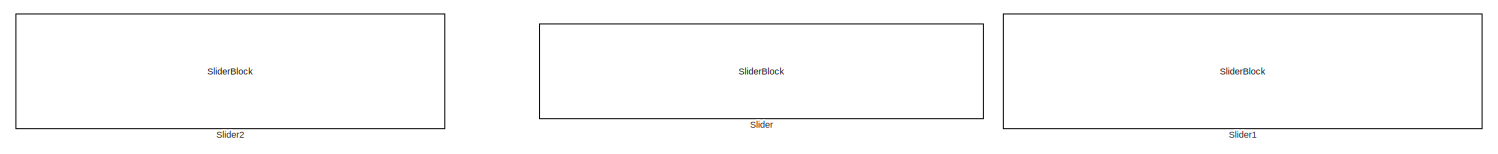
[diagram: root canvas - part 1/2, full width, top band]
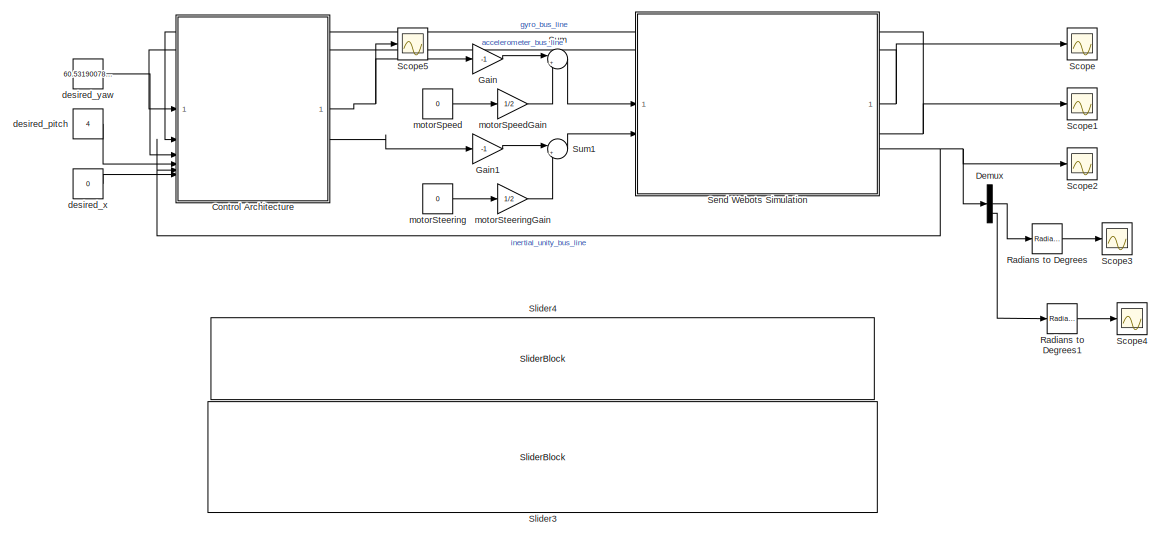
[diagram: root canvas - part 2/2, full width, bottom band]
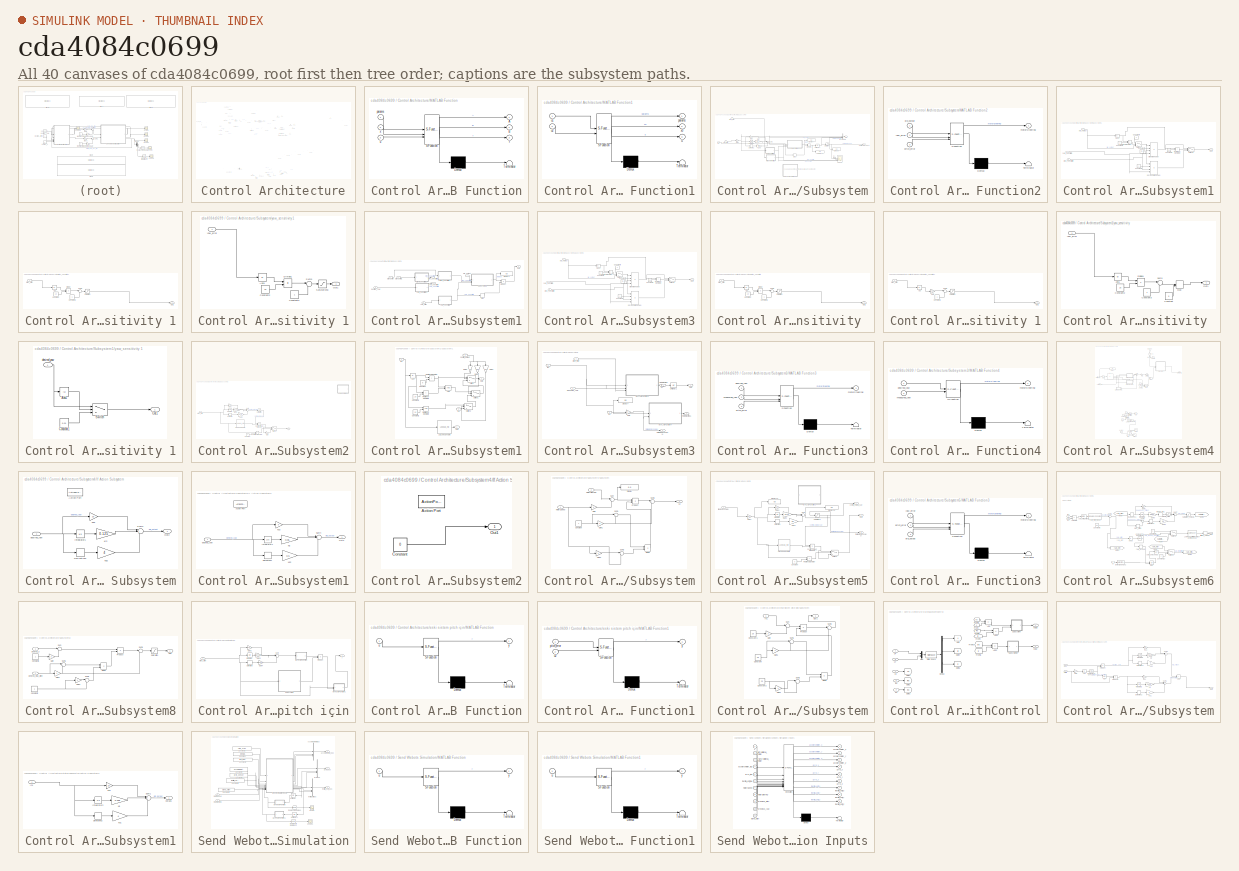
[diagram: thumbnail index - all 40 canvases of the model, root first then tree order]
MODEL slx_cda4084c0699
KIND model
CONFIG AbsTol = auto
CONFIG EnableMultiTasking = off
CONFIG FixedStep = 0.016
CONFIG MaxStep = auto
CONFIG MinStep = auto
CONFIG RelTol = 1e-3
CONFIG SampleTimeConstraint = Unconstrained
CONFIG SolverName = ode5
CONFIG StartTime = 0.0
CONFIG StopTime = inf
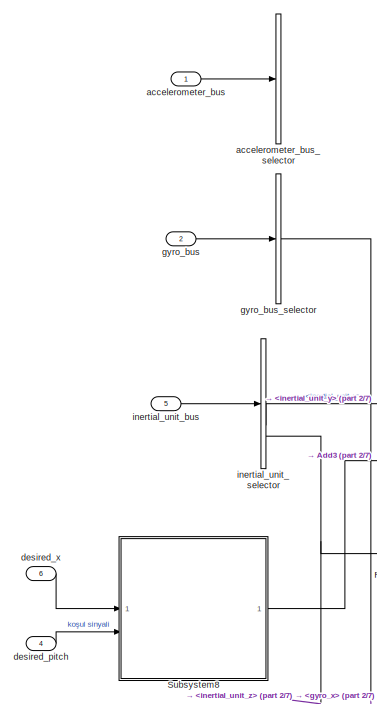
[diagram: Control Architecture - part 1/7, top left region]
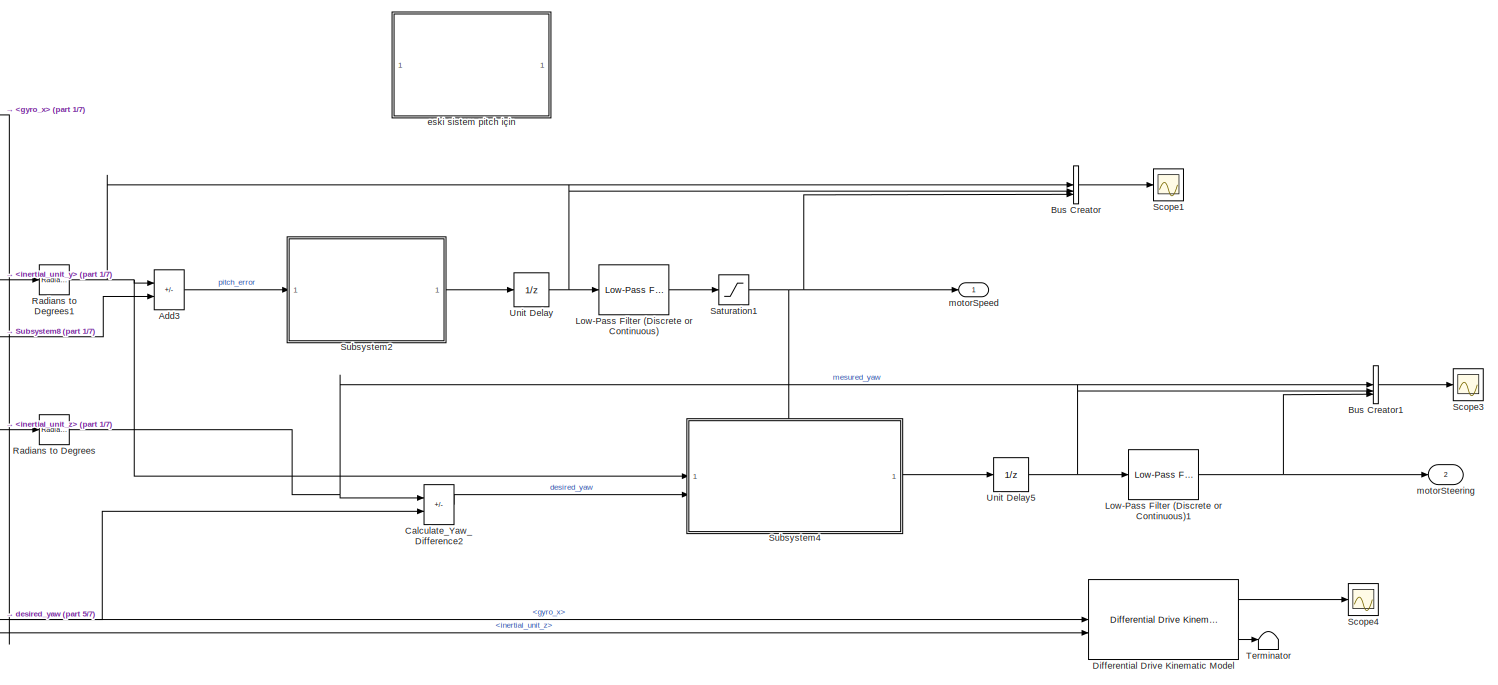
[diagram: Control Architecture - part 2/7, top center region]
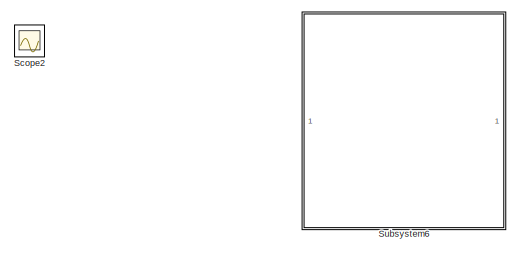
[diagram: Control Architecture - part 3/7, top right region]
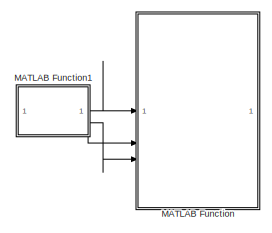
[diagram: Control Architecture - part 4/7, top left region]
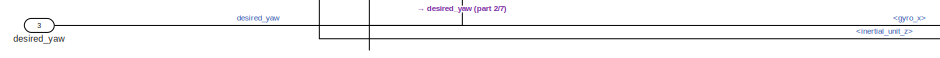
[diagram: Control Architecture - part 5/7, middle left region]
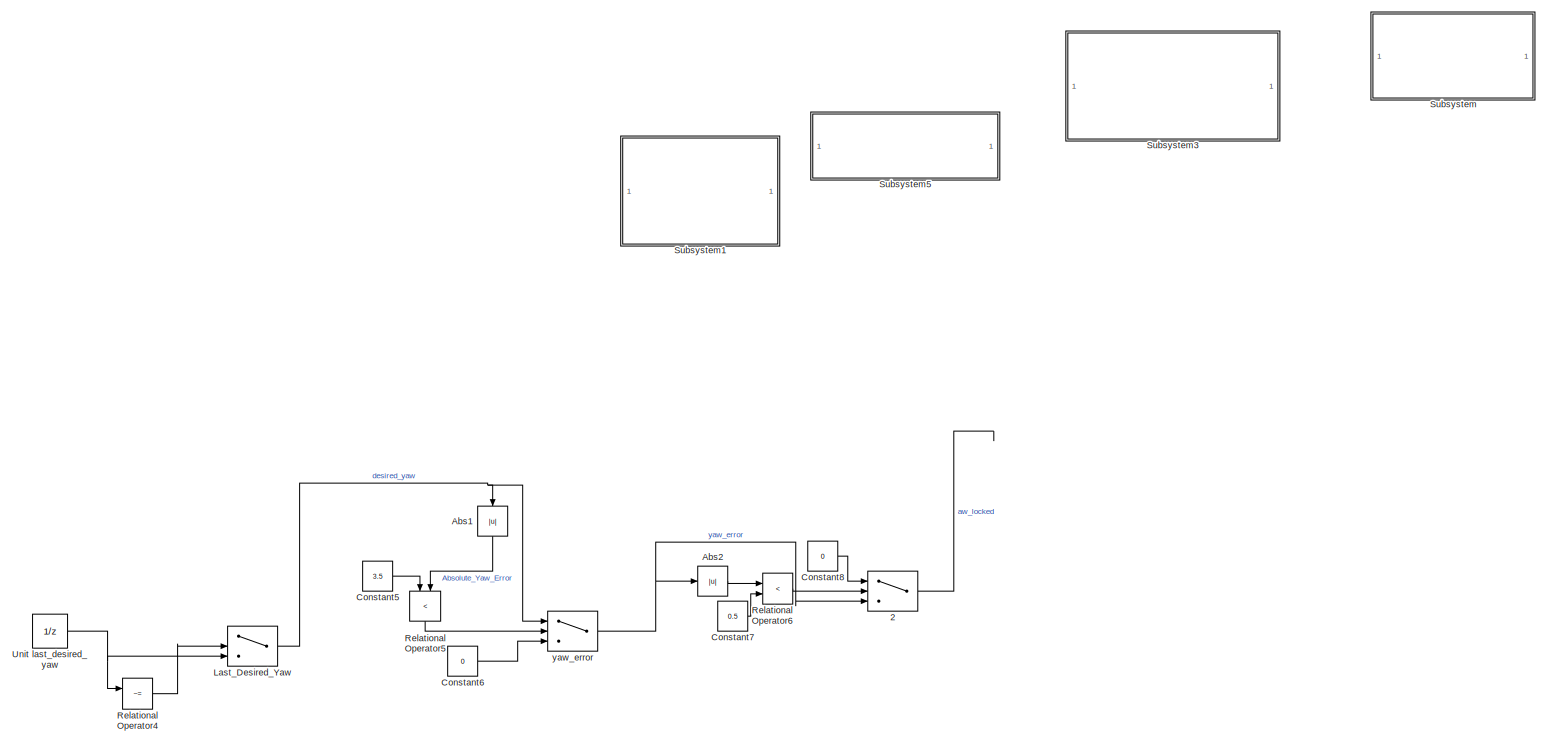
[diagram: Control Architecture - part 6/7, bottom center region]
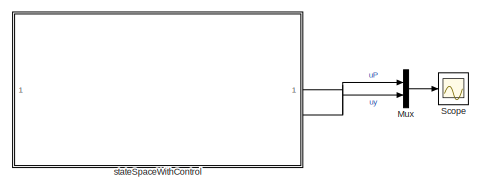
[diagram: Control Architecture - part 7/7, bottom left region]
BLOCK [SubSystem] Control Architecture
BLOCK [Switch] Control Architecture/ 2
  Commented = on
  Criteria = u2 > Threshold
  InputSameDT = off
  SaturateOnIntegerOverflow = off
BLOCK [Abs] Control Architecture/Abs1
  Commented = on
  NameLocation = left
  SaturateOnIntegerOverflow = off
BLOCK [Abs] Control Architecture/Abs2
  Commented = on
  SaturateOnIntegerOverflow = off
BLOCK [Sum] Control Architecture/Add3
  IconShape = rectangular
  Inputs = -+
BLOCK [BusCreator] Control Architecture/Bus Creator
  DisplayOption = bar
  InheritFromInputs = on
  Inputs = 3
BLOCK [BusCreator] Control Architecture/Bus Creator1
  DisplayOption = bar
  InheritFromInputs = on
  Inputs = 3
BLOCK [Sum] Control Architecture/Calculate_Yaw_Difference2
  IconShape = rectangular
  Inputs = -+
BLOCK [Constant] Control Architecture/Constant5
  Commented = on
  Value = 3.5
BLOCK [Constant] Control Architecture/Constant6
  Commented = on
  Value = 0
BLOCK [Constant] Control Architecture/Constant7
  Commented = on
  Value = 0.5
BLOCK [Constant] Control Architecture/Constant8
  Commented = on
  Value = 0
BLOCK [Reference] Control Architecture/Differential Drive Kinematic Model  REF=robotmobilelib/Differential Drive Kinematic Model
  SourceBlock = robotmobilelib/Differential Drive Kinematic Model
  SourceType = Differential Drive Kinematic Model
BLOCK [Switch] Control Architecture/Last_Desired_Yaw
  Commented = on
  Criteria = u2 > Threshold
  InputSameDT = off
  SaturateOnIntegerOverflow = off
BLOCK [Reference] Control Architecture/Low-Pass Filter (Discrete or Continuous)  REF=eeGeneralControl/Low-Pass Filter
(Discrete or Continuous)
  LibrarySourceBlock = ee_sl_lib/General Control/Low-Pass Filter\n(Discrete or Continuous)
  SourceBlock = eeGeneralControl/Low-Pass Filter\n(Discrete or Continuous)
  SourceType = Low-Pass Filter (Discrete or Continuous)
BLOCK [Reference] Control Architecture/Low-Pass Filter (Discrete or Continuous)1  REF=eeGeneralControl/Low-Pass Filter
(Discrete or Continuous)
  LibrarySourceBlock = ee_sl_lib/General Control/Low-Pass Filter\n(Discrete or Continuous)
  SourceBlock = eeGeneralControl/Low-Pass Filter\n(Discrete or Continuous)
  SourceType = Low-Pass Filter (Discrete or Continuous)
BLOCK [SubSystem] Control Architecture/MATLAB Function
  Commented = on
  ErrorFcn = Stateflow.Translate.translate
  PermitHierarchicalResolution = ExplicitOnly
  SFBlockType = MATLAB Function
  TreatAsAtomicUnit = on
BLOCK [Demux] Control Architecture/MATLAB Function/ Demux 
  Outputs = 1
BLOCK [S-Function] Control Architecture/MATLAB Function/ SFunction 
  EnableBusSupport = off
  FunctionName = sf_sfun
  PortCounts = [3 4]
  SFcnIsStateOwnerBlock = off
  SFunctionDeploymentMode = off
  Tag = Stateflow S-Function 3
BLOCK [Terminator] Control Architecture/MATLAB Function/ Terminator 
BLOCK [Outport] Control Architecture/MATLAB Function/A
BLOCK [Outport] Control Architecture/MATLAB Function/B
  Port = 2
BLOCK [Outport] Control Architecture/MATLAB Function/f
  Port = 3
BLOCK [Inport] Control Architecture/MATLAB Function/params
BLOCK [Inport] Control Architecture/MATLAB Function/u
  Port = 3
BLOCK [Inport] Control Architecture/MATLAB Function/x
  Port = 2
BLOCK [SubSystem] Control Architecture/MATLAB Function1
  Commented = on
  ErrorFcn = Stateflow.Translate.translate
  PermitHierarchicalResolution = ExplicitOnly
  SFBlockType = MATLAB Function
  TreatAsAtomicUnit = on
BLOCK [Demux] Control Architecture/MATLAB Function1/ Demux 
  Outputs = 1
BLOCK [S-Function] Control Architecture/MATLAB Function1/ SFunction 
  EnableBusSupport = off
  FunctionName = sf_sfun
  PortCounts = [2 4]
  SFcnIsStateOwnerBlock = off
  SFunctionDeploymentMode = off
  Tag = Stateflow S-Function 4
BLOCK [Terminator] Control Architecture/MATLAB Function1/ Terminator 
BLOCK [Outport] Control Architecture/MATLAB Function1/params
BLOCK [Outport] Control Architecture/MATLAB Function1/u
  Port = 3
BLOCK [Inport] Control Architecture/MATLAB Function1/u1
BLOCK [Inport] Control Architecture/MATLAB Function1/u2
  Port = 2
BLOCK [Outport] Control Architecture/MATLAB Function1/x0
  Port = 2
BLOCK [Mux] Control Architecture/Mux
  Commented = on
  DisplayOption = bar
  Inputs = 2
BLOCK [Reference] Control Architecture/Radians to Degrees  REF=simulink_extras/Transformations/Radians
to Degrees
  SourceBlock = simulink_extras/Transformations/Radians\nto Degrees
  SourceType = RadiansToDegrees
BLOCK [Reference] Control Architecture/Radians to Degrees1  REF=simulink_extras/Transformations/Radians
to Degrees
  SourceBlock = simulink_extras/Transformations/Radians\nto Degrees
  SourceType = RadiansToDegrees
BLOCK [RelationalOperator] Control Architecture/Relational Operator4
  Commented = on
  InputSameDT = off
  Operator = ~=
  OutDataTypeStr = boolean
  RndMeth = Simplest
BLOCK [RelationalOperator] Control Architecture/Relational Operator5
  Commented = on
  InputSameDT = off
  NameLocation = left
  Operator = <
  OutDataTypeStr = boolean
  RndMeth = Simplest
BLOCK [RelationalOperator] Control Architecture/Relational Operator6
  Commented = on
  InputSameDT = off
  Operator = <
  OutDataTypeStr = boolean
  RndMeth = Simplest
BLOCK [Saturate] Control Architecture/Saturation1
  LowerLimit = -25
  UpperLimit = 25
BLOCK [Scope] Control Architecture/Scope
  Commented = on
  Floating = off
  NumInputPorts = 1
  ScopeSpecificationString = Simulink.scopes.TimeScopeBlockCfg('CurrentConfiguration', extmgr.ConfigurationSet(extmgr.Configuration('Core','General UI',true),extmgr.Configuration('Core','Source UI',true),extmgr.Configuration('Sources','WiredSimulink',true,'DataLoggingVariableName','ScopeData4'),extmgr.Configuration('Visuals','Time Domain',true,'SerializedDisplays',{struct('MinYLimReal','-2094.7785','MaxYLimReal','255.69094','...<+1523ch>
BLOCK [Scope] Control Architecture/Scope1
  Floating = off
  NumInputPorts = 1
  ScopeSpecificationString = Simulink.scopes.TimeScopeBlockCfg('CurrentConfiguration', extmgr.ConfigurationSet(extmgr.Configuration('Core','General UI',true),extmgr.Configuration('Core','Source UI',true),extmgr.Configuration('Sources','WiredSimulink',true,'DataLoggingVariableName','ScopeData2'),extmgr.Configuration('Visuals','Time Domain',true,'SerializedDisplays',{struct('MinYLimReal','-2.72539','MaxYLimReal','4.42739','YLab...<+1567ch>
BLOCK [Scope] Control Architecture/Scope2
  Floating = off
  NumInputPorts = 1
  ScopeSpecificationString = Simulink.scopes.TimeScopeBlockCfg('CurrentConfiguration', extmgr.ConfigurationSet(extmgr.Configuration('Core','General UI',true),extmgr.Configuration('Core','Source UI',true),extmgr.Configuration('Sources','WiredSimulink',true,'DataLoggingVariableName','ScopeData1'),extmgr.Configuration('Visuals','Time Domain',true,'SerializedDisplays',{struct('MinYLimReal','-132356.91238','MaxYLimReal','132786.96...<+1571ch>
BLOCK [Scope] Control Architecture/Scope3
  Floating = off
  NumInputPorts = 1
  ScopeSpecificationString = Simulink.scopes.TimeScopeBlockCfg('CurrentConfiguration', extmgr.ConfigurationSet(extmgr.Configuration('Core','General UI',true),extmgr.Configuration('Core','Source UI',true),extmgr.Configuration('Sources','WiredSimulink',true,'DataLoggingVariableName','ScopeData1'),extmgr.Configuration('Visuals','Time Domain',true,'SerializedDisplays',{struct('MinYLimReal','3.82814','MaxYLimReal','79.12907','YLab...<+1588ch>
BLOCK [Scope] Control Architecture/Scope4
  Floating = off
  NumInputPorts = 1
  ScopeSpecificationString = Simulink.scopes.TimeScopeBlockCfg('CurrentConfiguration', extmgr.ConfigurationSet(extmgr.Configuration('Core','General UI',true),extmgr.Configuration('Core','Source UI',true),extmgr.Configuration('Sources','WiredSimulink',true,'DataLoggingVariableName','ScopeData6'),extmgr.Configuration('Visuals','Time Domain',true,'SerializedDisplays',{struct('MinYLimReal','-21.61959','MaxYLimReal','194.57625','Y...<+1673ch>
BLOCK [SubSystem] Control Architecture/Subsystem
  Commented = on
BLOCK [BusCreator] Control Architecture/Subsystem/Bus Creator1
  DisplayOption = bar
  InheritFromInputs = on
  Inputs = 4
BLOCK [Derivative] Control Architecture/Subsystem/Derivative2
  CoefficientInTFapproximation = 0.016
BLOCK [Display] Control Architecture/Subsystem/Display5
  Decimation = 1
BLOCK [Display] Control Architecture/Subsystem/Display6
  Decimation = 1
BLOCK [Display] Control Architecture/Subsystem/Display7
  Decimation = 1
BLOCK [Gain] Control Architecture/Subsystem/Gain3
  Gain = 30
BLOCK [Gain] Control Architecture/Subsystem/Gain4
  Gain = 30
BLOCK [Gain] Control Architecture/Subsystem/Gain7
  Gain = 0.2
BLOCK [Gain] Control Architecture/Subsystem/Gain8
  Gain = 4.5
BLOCK [Inport] Control Architecture/Subsystem/In3
  Port = 3
BLOCK [Inport] Control Architecture/Subsystem/In4
  Port = 4
BLOCK [Integrator] Control Architecture/Subsystem/Integrator2
BLOCK [SubSystem] Control Architecture/Subsystem/MATLAB Function2
  Commented = on
  ErrorFcn = Stateflow.Translate.translate
  PermitHierarchicalResolution = ExplicitOnly
  SFBlockType = MATLAB Function
  TreatAsAtomicUnit = on
BLOCK [Demux] Control Architecture/Subsystem/MATLAB Function2/ Demux 
  Outputs = 1
BLOCK [S-Function] Control Architecture/Subsystem/MATLAB Function2/ SFunction 
  EnableBusSupport = off
  FunctionName = sf_sfun
  PortCounts = [3 2]
  SFcnIsStateOwnerBlock = off
  SFunctionDeploymentMode = off
  Tag = Stateflow S-Function 6
BLOCK [Terminator] Control Architecture/Subsystem/MATLAB Function2/ Terminator 
BLOCK [Outport] Control Architecture/Subsystem/MATLAB Function2/motorSteering
BLOCK [Inport] Control Architecture/Subsystem/MATLAB Function2/pid_output
BLOCK [Inport] Control Architecture/Subsystem/MATLAB Function2/pitch_error
  Port = 3
BLOCK [Inport] Control Architecture/Subsystem/MATLAB Function2/yaw_error
  Port = 2
BLOCK [Outport] Control Architecture/Subsystem/Out1
BLOCK [Product] Control Architecture/Subsystem/Product1
BLOCK [Saturate] Control Architecture/Subsystem/Saturation3
  LowerLimit = -25.0
  UpperLimit = 25.0
BLOCK [Scope] Control Architecture/Subsystem/Scope4
  Floating = off
  NumInputPorts = 4
  ScopeSpecificationString = Simulink.scopes.TimeScopeBlockCfg('CurrentConfiguration', extmgr.ConfigurationSet(extmgr.Configuration('Core','General UI',true),extmgr.Configuration('Core','Source UI',true),extmgr.Configuration('Sources','WiredSimulink',true,'DataLoggingVariableName','ScopeData1'),extmgr.Configuration('Visuals','Time Domain',true,'SerializedDisplays',{struct('MinYLimReal','-158.71805','MaxYLimReal','1428.46241',...<+1590ch>
BLOCK [Signum] Control Architecture/Subsystem/Sign1
BLOCK [SubSystem] Control Architecture/Subsystem/Subsystem1
BLOCK [Abs] Control Architecture/Subsystem/Subsystem1/Abs2
  SaturateOnIntegerOverflow = off
BLOCK [Constant] Control Architecture/Subsystem/Subsystem1/Constant1
BLOCK [Constant] Control Architecture/Subsystem/Subsystem1/Constant4
BLOCK [Constant] Control Architecture/Subsystem/Subsystem1/Constant5
  Value = 15
BLOCK [Constant] Control Architecture/Subsystem/Subsystem1/Constant6
  NameLocation = top
  Value = 0
BLOCK [Constant] Control Architecture/Subsystem/Subsystem1/Constant7
  Value = 0.5
BLOCK [Outport] Control Architecture/Subsystem/Subsystem1/Out1
BLOCK [RelationalOperator] Control Architecture/Subsystem/Subsystem1/Relational Operator
  InputSameDT = off
  Operator = <
  OutDataTypeStr = boolean
  RndMeth = Simplest
BLOCK [RelationalOperator] Control Architecture/Subsystem/Subsystem1/Relational Operator1
  InputSameDT = off
  Operator = <
  OutDataTypeStr = boolean
  RndMeth = Simplest
BLOCK [Switch] Control Architecture/Subsystem/Subsystem1/Switch A
  Criteria = u2 > Threshold
  InputSameDT = off
  SaturateOnIntegerOverflow = off
BLOCK [Switch] Control Architecture/Subsystem/Subsystem1/Switch B
  Criteria = u2 > Threshold
  InputSameDT = off
  SaturateOnIntegerOverflow = off
BLOCK [Product] Control Architecture/Subsystem/Subsystem1/büyük hata hesabı
  Inputs = 4
BLOCK [Product] Control Architecture/Subsystem/Subsystem1/orta hata hesabı
  Inputs = 4
BLOCK [Inport] Control Architecture/Subsystem/Subsystem1/pitch_sensitivity
  Port = 2
BLOCK [Inport] Control Architecture/Subsystem/Subsystem1/pıd_output
BLOCK [Inport] Control Architecture/Subsystem/Subsystem1/yaw_sensitivity
  Port = 3
BLOCK [Sum] Control Architecture/Subsystem/Sum2
  Inputs = |+++
BLOCK [UnitDelay] Control Architecture/Subsystem/Unit Delay1
  HasFrameUpgradeWarning = on
  SampleTime = -1
BLOCK [Inport] Control Architecture/Subsystem/pitch_error
BLOCK [SubSystem] Control Architecture/Subsystem/pitch_sensitivity 1
BLOCK [Abs] Control Architecture/Subsystem/pitch_sensitivity 1/Abs
  SaturateOnIntegerOverflow = off
BLOCK [Constant] Control Architecture/Subsystem/pitch_sensitivity 1/Constant
  Value = 10
BLOCK [Constant] Control Architecture/Subsystem/pitch_sensitivity 1/Constant1
BLOCK [Product] Control Architecture/Subsystem/pitch_sensitivity 1/Divide
  Inputs = */
  RndMeth = Zero
  SaturateOnIntegerOverflow = on
BLOCK [Outport] Control Architecture/Subsystem/pitch_sensitivity 1/Out1
BLOCK [Saturate] Control Architecture/Subsystem/pitch_sensitivity 1/Saturation
  LowerLimit = 0
  UpperLimit = 1
BLOCK [Sum] Control Architecture/Subsystem/pitch_sensitivity 1/Sum2
  Inputs = |-+
BLOCK [Inport] Control Architecture/Subsystem/pitch_sensitivity 1/pitch_error
BLOCK [Outport] Control Architecture/Subsystem/stuartionmotospeed
  Port = 2
BLOCK [Inport] Control Architecture/Subsystem/yaw_error
  Port = 2
BLOCK [SubSystem] Control Architecture/Subsystem/yaw_sensitivity 1
BLOCK [Abs] Control Architecture/Subsystem/yaw_sensitivity 1/Abs1
  SaturateOnIntegerOverflow = off
BLOCK [Constant] Control Architecture/Subsystem/yaw_sensitivity 1/Constant2
  Value = 15
BLOCK [Constant] Control Architecture/Subsystem/yaw_sensitivity 1/Constant3
BLOCK [Product] Control Architecture/Subsystem/yaw_sensitivity 1/Divide1
  Inputs = */
  RndMeth = Zero
  SaturateOnIntegerOverflow = on
BLOCK [Outport] Control Architecture/Subsystem/yaw_sensitivity 1/Out1
BLOCK [Saturate] Control Architecture/Subsystem/yaw_sensitivity 1/Saturation3
  LowerLimit = 0
  UpperLimit = 1
BLOCK [Sum] Control Architecture/Subsystem/yaw_sensitivity 1/Sum3
  Inputs = |-+
BLOCK [Inport] Control Architecture/Subsystem/yaw_sensitivity 1/yaw_error
BLOCK [SubSystem] Control Architecture/Subsystem1
  Commented = on
BLOCK [Display] Control Architecture/Subsystem1/Display4
  Decimation = 1
BLOCK [Outport] Control Architecture/Subsystem1/Out1
BLOCK [Product] Control Architecture/Subsystem1/Product
BLOCK [Signum] Control Architecture/Subsystem1/Sign
BLOCK [SubSystem] Control Architecture/Subsystem1/Subsystem3
BLOCK [Abs] Control Architecture/Subsystem1/Subsystem3/Abs2
  SaturateOnIntegerOverflow = off
BLOCK [Constant] Control Architecture/Subsystem1/Subsystem3/Constant1
BLOCK [Constant] Control Architecture/Subsystem1/Subsystem3/Constant4
BLOCK [Constant] Control Architecture/Subsystem1/Subsystem3/Constant5
  Value = 15
BLOCK [Constant] Control Architecture/Subsystem1/Subsystem3/Constant6
  NameLocation = top
  Value = 0
BLOCK [Constant] Control Architecture/Subsystem1/Subsystem3/Constant7
  Value = 0.5
BLOCK [Outport] Control Architecture/Subsystem1/Subsystem3/Out1
BLOCK [RelationalOperator] Control Architecture/Subsystem1/Subsystem3/Relational Operator
  InputSameDT = off
  Operator = <
  OutDataTypeStr = boolean
  RndMeth = Simplest
BLOCK [RelationalOperator] Control Architecture/Subsystem1/Subsystem3/Relational Operator1
  InputSameDT = off
  Operator = <
  OutDataTypeStr = boolean
  RndMeth = Simplest
BLOCK [Switch] Control Architecture/Subsystem1/Subsystem3/Switch A
  Criteria = u2 > Threshold
  InputSameDT = off
  SaturateOnIntegerOverflow = off
BLOCK [Switch] Control Architecture/Subsystem1/Subsystem3/Switch B
  Criteria = u2 > Threshold
  InputSameDT = off
  SaturateOnIntegerOverflow = off
BLOCK [Product] Control Architecture/Subsystem1/Subsystem3/büyük hata hesabı
  Inputs = 4
BLOCK [Product] Control Architecture/Subsystem1/Subsystem3/orta hata hesabı
  Inputs = 4
BLOCK [Inport] Control Architecture/Subsystem1/Subsystem3/pitch_sensitivity
  Port = 2
BLOCK [Inport] Control Architecture/Subsystem1/Subsystem3/pıd_output
BLOCK [Inport] Control Architecture/Subsystem1/Subsystem3/yaw_sensitivity
  Port = 3
BLOCK [Inport] Control Architecture/Subsystem1/desired_yaw
  Port = 4
BLOCK [Inport] Control Architecture/Subsystem1/pitch_error
  Port = 2
BLOCK [Inport] Control Architecture/Subsystem1/pitch_error1
  Port = 3
BLOCK [Outport] Control Architecture/Subsystem1/pitch_sensitivity
  Port = 2
BLOCK [SubSystem] Control Architecture/Subsystem1/pitch_sensitivity 
BLOCK [Abs] Control Architecture/Subsystem1/pitch_sensitivity /Abs
  SaturateOnIntegerOverflow = off
BLOCK [Constant] Control Architecture/Subsystem1/pitch_sensitivity /Constant
  Value = 10
BLOCK [Constant] Control Architecture/Subsystem1/pitch_sensitivity /Constant1
BLOCK [Product] Control Architecture/Subsystem1/pitch_sensitivity /Divide
  Inputs = */
  RndMeth = Zero
  SaturateOnIntegerOverflow = on
BLOCK [Outport] Control Architecture/Subsystem1/pitch_sensitivity /Out1
BLOCK [Saturate] Control Architecture/Subsystem1/pitch_sensitivity /Saturation
  LowerLimit = 0
  UpperLimit = 1
BLOCK [Sum] Control Architecture/Subsystem1/pitch_sensitivity /Sum2
  Inputs = |-+
BLOCK [Inport] Control Architecture/Subsystem1/pitch_sensitivity /pitch_error
BLOCK [SubSystem] Control Architecture/Subsystem1/pitch_sensitivity 1
BLOCK [Abs] Control Architecture/Subsystem1/pitch_sensitivity 1/Abs
  SaturateOnIntegerOverflow = off
BLOCK [Constant] Control Architecture/Subsystem1/pitch_sensitivity 1/Constant1
BLOCK [Gain] Control Architecture/Subsystem1/pitch_sensitivity 1/Gain
  Gain = 0.1
BLOCK [Outport] Control Architecture/Subsystem1/pitch_sensitivity 1/Out1
BLOCK [Saturate] Control Architecture/Subsystem1/pitch_sensitivity 1/Saturation
  LowerLimit = 0
  UpperLimit = 1
BLOCK [Sum] Control Architecture/Subsystem1/pitch_sensitivity 1/Sum2
  Inputs = |-+
BLOCK [Inport] Control Architecture/Subsystem1/pitch_sensitivity 1/pitch_error
BLOCK [Inport] Control Architecture/Subsystem1/pıd_output
BLOCK [Inport] Control Architecture/Subsystem1/yaw_error
  Port = 5
BLOCK [Outport] Control Architecture/Subsystem1/yaw_sensitivity
  Port = 3
BLOCK [SubSystem] Control Architecture/Subsystem1/yaw_sensitivity 
BLOCK [Abs] Control Architecture/Subsystem1/yaw_sensitivity /Abs1
  SaturateOnIntegerOverflow = off
BLOCK [Constant] Control Architecture/Subsystem1/yaw_sensitivity /Constant
  Value = 0
BLOCK [Constant] Control Architecture/Subsystem1/yaw_sensitivity /Constant2
  Value = 15
BLOCK [Constant] Control Architecture/Subsystem1/yaw_sensitivity /Constant3
BLOCK [Product] Control Architecture/Subsystem1/yaw_sensitivity /Divide1
  Inputs = */
  RndMeth = Zero
  SaturateOnIntegerOverflow = on
BLOCK [MinMax] Control Architecture/Subsystem1/yaw_sensitivity /Max
  Function = max
  Inputs = 2
BLOCK [Outport] Control Architecture/Subsystem1/yaw_sensitivity /Out1
BLOCK [Sum] Control Architecture/Subsystem1/yaw_sensitivity /Sum3
  Inputs = |-+
BLOCK [Inport] Control Architecture/Subsystem1/yaw_sensitivity /yaw_error
BLOCK [SubSystem] Control Architecture/Subsystem1/yaw_sensitivity 1
BLOCK [Abs] Control Architecture/Subsystem1/yaw_sensitivity 1/Abs1
  SaturateOnIntegerOverflow = off
BLOCK [Constant] Control Architecture/Subsystem1/yaw_sensitivity 1/Constant1
  Value = 0.01
BLOCK [Outport] Control Architecture/Subsystem1/yaw_sensitivity 1/Out1
BLOCK [Switch] Control Architecture/Subsystem1/yaw_sensitivity 1/Switch
  InputSameDT = off
  SaturateOnIntegerOverflow = off
BLOCK [Inport] Control Architecture/Subsystem1/yaw_sensitivity 1/desired_yaw
BLOCK [SubSystem] Control Architecture/Subsystem2
BLOCK [Lookup_n-D] Control Architecture/Subsystem2/1-D Lookup Table
  BreakpointsForDimension1 = [\n-25.0\n   -22.5\n   -20.0\n   -17.5\n   -15.0\n   -12.5\n   -10.0\n    -7.5\n    -5.0\n    -2.5\n     0.0\n     2.5\n     5.0\n     7.5\n    10.0\n    12.5\n    15.0\n    17.5\n    20.0\n    22.5\n    25.0\n];
  InputPortMap = u0
  InternalRulePriority = Speed
  NumberOfTableDimensions = 1
  RndMeth = Simplest
  Table = [-0.50\n   -0.45\n   -0.40\n   -0.35\n   -0.30\n   -0.25\n   -0.20\n   -0.15\n   -0.10\n   -0.05\n    0.00\n    0.05\n    0.10\n    0.15\n    0.20\n    0.25\n    0.30\n    0.35\n    0.40\n    0.45\n    0.50\n];
BLOCK [Constant] Control Architecture/Subsystem2/Constant
  Value = 0
BLOCK [Derivative] Control Architecture/Subsystem2/Derivative
  CoefficientInTFapproximation = 0.016
BLOCK [Gain] Control Architecture/Subsystem2/Gain
  Gain = -1
BLOCK [Gain] Control Architecture/Subsystem2/Gain2
  Gain = 44
BLOCK [Gain] Control Architecture/Subsystem2/Gain3
  Gain = 0.1725
BLOCK [Gain] Control Architecture/Subsystem2/Gain4
  Gain = 5.75
BLOCK [Integrator] Control Architecture/Subsystem2/Integrator
BLOCK [RelationalOperator] Control Architecture/Subsystem2/Relational Operator
  InputSameDT = off
  Operator = >
  OutDataTypeStr = boolean
  RndMeth = Simplest
BLOCK [Saturate] Control Architecture/Subsystem2/Saturation
  LowerLimit = -250
  UpperLimit = 250
BLOCK [SubSystem] Control Architecture/Subsystem2/Subsystem1
  Commented = on
BLOCK [Lookup_n-D] Control Architecture/Subsystem2/Subsystem1/1-D Lookup Table
  BreakpointsForDimension1 = [-25:25]
  InputPortMap = u0
  InternalRulePriority = Speed
  NumberOfTableDimensions = 1
  RndMeth = Simplest
  Table = tanh([-0.5:0.5])
BLOCK [Logic] Control Architecture/Subsystem2/Subsystem1/AND
  AllPortsSameDT = off
  IconShape = distinctive
  OutDataTypeStr = boolean
BLOCK [Abs] Control Architecture/Subsystem2/Subsystem1/Abs
  SaturateOnIntegerOverflow = off
BLOCK [Constant] Control Architecture/Subsystem2/Subsystem1/Constant
  Value = 8
BLOCK [Constant] Control Architecture/Subsystem2/Subsystem1/Constant1
  Value = 15
BLOCK [Constant] Control Architecture/Subsystem2/Subsystem1/Constant2
  Value = 15
BLOCK [Gain] Control Architecture/Subsystem2/Subsystem1/Gain1
  Gain = 0.01
  NameLocation = left
BLOCK [Gain] Control Architecture/Subsystem2/Subsystem1/Gain5
  Gain = 0.03
  NameLocation = left
BLOCK [Gain] Control Architecture/Subsystem2/Subsystem1/Gain6
  Gain = 0.1
  NameLocation = left
BLOCK [Inport] Control Architecture/Subsystem2/Subsystem1/In2
  Port = 2
BLOCK [Inport] Control Architecture/Subsystem2/Subsystem1/In4
  Port = 3
BLOCK [Outport] Control Architecture/Subsystem2/Subsystem1/Out2
BLOCK [Outport] Control Architecture/Subsystem2/Subsystem1/Out3
  Port = 2
BLOCK [RelationalOperator] Control Architecture/Subsystem2/Subsystem1/Relational Operator
  InputSameDT = off
  Operator = <
  OutDataTypeStr = boolean
  RndMeth = Simplest
BLOCK [RelationalOperator] Control Architecture/Subsystem2/Subsystem1/Relational Operator1
  InputSameDT = off
  Operator = <
  OutDataTypeStr = boolean
  RndMeth = Simplest
BLOCK [RelationalOperator] Control Architecture/Subsystem2/Subsystem1/Relational Operator2
  InputSameDT = off
  OutDataTypeStr = boolean
  RndMeth = Simplest
BLOCK [Switch] Control Architecture/Subsystem2/Subsystem1/Switch
  Criteria = u2 > Threshold
  InputSameDT = off
  SaturateOnIntegerOverflow = off
BLOCK [Switch] Control Architecture/Subsystem2/Subsystem1/Switch1
  Criteria = u2 > Threshold
  InputSameDT = off
  SaturateOnIntegerOverflow = off
BLOCK [Switch] Control Architecture/Subsystem2/Subsystem1/Switch2
  Criteria = u2 > Threshold
  InputSameDT = off
  SaturateOnIntegerOverflow = off
BLOCK [Inport] Control Architecture/Subsystem2/Subsystem1/control_output
BLOCK [Sum] Control Architecture/Subsystem2/Sum
  Inputs = |+++
BLOCK [Switch] Control Architecture/Subsystem2/Switch2
  Criteria = u2 > Threshold
  InputSameDT = off
  SaturateOnIntegerOverflow = off
BLOCK [Product] Control Architecture/Subsystem2/control_output_mapped
BLOCK [Inport] Control Architecture/Subsystem2/pitch_error
BLOCK [Outport] Control Architecture/Subsystem2/y
BLOCK [SubSystem] Control Architecture/Subsystem3
  Commented = on
BLOCK [Display] Control Architecture/Subsystem3/Display7
  Decimation = 1
BLOCK [Gain] Control Architecture/Subsystem3/Gain
BLOCK [Inport] Control Architecture/Subsystem3/In2
  Port = 2
BLOCK [Inport] Control Architecture/Subsystem3/In3
  Port = 3
BLOCK [Inport] Control Architecture/Subsystem3/In5
  Port = 5
BLOCK [SubSystem] Control Architecture/Subsystem3/MATLAB Function3
  ErrorFcn = Stateflow.Translate.translate
  PermitHierarchicalResolution = ExplicitOnly
  SFBlockType = MATLAB Function
  TreatAsAtomicUnit = on
BLOCK [Demux] Control Architecture/Subsystem3/MATLAB Function3/ Demux 
  Outputs = 1
BLOCK [S-Function] Control Architecture/Subsystem3/MATLAB Function3/ SFunction 
  EnableBusSupport = off
  FunctionName = sf_sfun
  PortCounts = [3 2]
  SFcnIsStateOwnerBlock = off
  SFunctionDeploymentMode = off
  Tag = Stateflow S-Function 8
BLOCK [Terminator] Control Architecture/Subsystem3/MATLAB Function3/ Terminator 
BLOCK [Inport] Control Architecture/Subsystem3/MATLAB Function3/desired_yaw
BLOCK [Inport] Control Architecture/Subsystem3/MATLAB Function3/measured_yaw
  Port = 2
BLOCK [Outport] Control Architecture/Subsystem3/MATLAB Function3/motorSteering
BLOCK [Inport] Control Architecture/Subsystem3/MATLAB Function3/pitch_error
  Port = 3
BLOCK [SubSystem] Control Architecture/Subsystem3/MATLAB Function4
  Commented = on
  ErrorFcn = Stateflow.Translate.translate
  PermitHierarchicalResolution = ExplicitOnly
  SFBlockType = MATLAB Function
  TreatAsAtomicUnit = on
BLOCK [Demux] Control Architecture/Subsystem3/MATLAB Function4/ Demux 
  Outputs = 1
BLOCK [S-Function] Control Architecture/Subsystem3/MATLAB Function4/ SFunction 
  EnableBusSupport = off
  FunctionName = sf_sfun
  PortCounts = [2 2]
  SFcnIsStateOwnerBlock = off
  SFunctionDeploymentMode = off
  Tag = Stateflow S-Function 9
BLOCK [Terminator] Control Architecture/Subsystem3/MATLAB Function4/ Terminator 
BLOCK [Inport] Control Architecture/Subsystem3/MATLAB Function4/desired_yaw
BLOCK [Inport] Control Architecture/Subsystem3/MATLAB Function4/measured_yaw
  Port = 2
BLOCK [Outport] Control Architecture/Subsystem3/MATLAB Function4/motorSteering
BLOCK [Outport] Control Architecture/Subsystem3/Out2
  Port = 2
BLOCK [UnitDelay] Control Architecture/Subsystem3/Unit Delay1
  HasFrameUpgradeWarning = on
  SampleTime = -1
BLOCK [Outport] Control Architecture/Subsystem3/matlabfuniconçıkışı
  Port = 4
BLOCK [Inport] Control Architecture/Subsystem3/measured_yaw
  Port = 4
BLOCK [Outport] Control Architecture/Subsystem3/motorSteering
BLOCK [Outport] Control Architecture/Subsystem3/motorSteering1
  Port = 3
BLOCK [Inport] Control Architecture/Subsystem3/pitch_error
BLOCK [SubSystem] Control Architecture/Subsystem4
  PortSchema = {"entries":[{"content":{"sides":[{"content":{"connectorIds":["In1","In2"]},"type":"ConnectorPlacement.EquallySpacedRectSide","uuid":"8ea77c90-69e3-4b28-847a-36c3733c4ca1"},{"content":{"connectorIds":["Out1"],"side":"RIGHT"},"type":"ConnectorPlacement.EquallySpacedRectSide","uuid":"94f1f4b2-c797-44bf-abc2-6d3fe195cf34"},{"content":{"connectorIds":["In3"],"side":"TOP"},"type":"ConnectorPlacement.Equ...<+251ch>
BLOCK [Abs] Control Architecture/Subsystem4/Abs
  Commented = on
  SaturateOnIntegerOverflow = off
BLOCK [Abs] Control Architecture/Subsystem4/Abs1
  NameLocation = left
  SaturateOnIntegerOverflow = off
BLOCK [Abs] Control Architecture/Subsystem4/Abs2
  SaturateOnIntegerOverflow = off
BLOCK [Constant] Control Architecture/Subsystem4/Constant
  Commented = on
  Value = 5
BLOCK [Constant] Control Architecture/Subsystem4/Constant1
  Commented = on
  NameLocation = left
  Value = 0
BLOCK [Constant] Control Architecture/Subsystem4/Constant2
  Commented = on
  Value = 10
BLOCK [Constant] Control Architecture/Subsystem4/Constant3
  Commented = on
  Value = 5
BLOCK [Constant] Control Architecture/Subsystem4/Constant4
  Commented = on
  Value = 0
BLOCK [Constant] Control Architecture/Subsystem4/Constant5
  NameLocation = top
  Value = 25
BLOCK [Constant] Control Architecture/Subsystem4/Constant6
BLOCK [Constant] Control Architecture/Subsystem4/Constant7
  Value = 0
BLOCK [Display] Control Architecture/Subsystem4/Display1
  Decimation = 1
BLOCK [From] Control Architecture/Subsystem4/From
  Commented = on
  GotoTag = on
BLOCK [Gain] Control Architecture/Subsystem4/Gain
  Gain = 0.01
BLOCK [Goto] Control Architecture/Subsystem4/Goto
  Commented = on
  GotoTag = on
BLOCK [If] Control Architecture/Subsystem4/If
  ElseIfExpressions = 10>u1>5
  IfExpression = 5>u1 > 0
BLOCK [SubSystem] Control Architecture/Subsystem4/If Action Subsystem
  TreatAsAtomicUnit = on
BLOCK [ActionPort] Control Architecture/Subsystem4/If Action Subsystem/Action Port
  ActionPortLabel = if(5>u1 > 0)
BLOCK [Derivative] Control Architecture/Subsystem4/If Action Subsystem/Derivative1
  CoefficientInTFapproximation = 0.016
BLOCK [Integrator] Control Architecture/Subsystem4/If Action Subsystem/Integrator1
BLOCK [Outport] Control Architecture/Subsystem4/If Action Subsystem/Out2
BLOCK [Sum] Control Architecture/Subsystem4/If Action Subsystem/Sum4
  Inputs = |+++
BLOCK [Inport] Control Architecture/Subsystem4/If Action Subsystem/desired_yaw
BLOCK [Gain] Control Architecture/Subsystem4/If Action Subsystem/kd2
  Gain = 4
BLOCK [Gain] Control Architecture/Subsystem4/If Action Subsystem/ki2
  Gain = 0.125
BLOCK [Gain] Control Architecture/Subsystem4/If Action Subsystem/kp2
  Gain = 20
BLOCK [SubSystem] Control Architecture/Subsystem4/If Action Subsystem1
  TreatAsAtomicUnit = on
BLOCK [ActionPort] Control Architecture/Subsystem4/If Action Subsystem1/Action Port
  ActionPortLabel = elseif(10>u1>5)
BLOCK [Derivative] Control Architecture/Subsystem4/If Action Subsystem1/Derivative1
  CoefficientInTFapproximation = 0.016
BLOCK [Integrator] Control Architecture/Subsystem4/If Action Subsystem1/Integrator1
BLOCK [Outport] Control Architecture/Subsystem4/If Action Subsystem1/Out2
BLOCK [Sum] Control Architecture/Subsystem4/If Action Subsystem1/Sum4
  Inputs = |+++
BLOCK [Inport] Control Architecture/Subsystem4/If Action Subsystem1/desired_yaw
BLOCK [Gain] Control Architecture/Subsystem4/If Action Subsystem1/kd2
  Gain = 0.5
BLOCK [Gain] Control Architecture/Subsystem4/If Action Subsystem1/ki2
  Gain = 0.05
BLOCK [Gain] Control Architecture/Subsystem4/If Action Subsystem1/kp2
  Gain = 5
BLOCK [SubSystem] Control Architecture/Subsystem4/If Action Subsystem2
  TreatAsAtomicUnit = on
BLOCK [ActionPort] Control Architecture/Subsystem4/If Action Subsystem2/Action Port
  ActionPortLabel = else
BLOCK [Constant] Control Architecture/Subsystem4/If Action Subsystem2/Constant
  Value = 0
BLOCK [Outport] Control Architecture/Subsystem4/If Action Subsystem2/Out1
BLOCK [Product] Control Architecture/Subsystem4/Product
BLOCK [RelationalOperator] Control Architecture/Subsystem4/Relational Operator
  Commented = on
  InputSameDT = off
  Operator = <=
  OutDataTypeStr = boolean
  RndMeth = Simplest
BLOCK [RelationalOperator] Control Architecture/Subsystem4/Relational Operator1
  Commented = on
  InputSameDT = off
  OutDataTypeStr = boolean
  RndMeth = Simplest
BLOCK [RelationalOperator] Control Architecture/Subsystem4/Relational Operator2
  Commented = on
  InputSameDT = off
  OutDataTypeStr = boolean
  RndMeth = Simplest
BLOCK [Saturate] Control Architecture/Subsystem4/Saturation
  LowerLimit = -1000
  UpperLimit = 1000
BLOCK [SubSystem] Control Architecture/Subsystem4/Subsystem
BLOCK [Constant] Control Architecture/Subsystem4/Subsystem/Constant
BLOCK [Display] Control Architecture/Subsystem4/Subsystem/Display
  Decimation = 1
BLOCK [Product] Control Architecture/Subsystem4/Subsystem/Divide
  Inputs = */
BLOCK [Gain] Control Architecture/Subsystem4/Subsystem/Gain
  Gain = -1
BLOCK [Gain] Control Architecture/Subsystem4/Subsystem/Gain1
  Gain = -1
BLOCK [Gain] Control Architecture/Subsystem4/Subsystem/Gain2
  Gain = -1
BLOCK [Product] Control Architecture/Subsystem4/Subsystem/Product
BLOCK [Sum] Control Architecture/Subsystem4/Subsystem/Sum
  Inputs = |+-
BLOCK [Sum] Control Architecture/Subsystem4/Subsystem/Sum1
  Inputs = |+-
BLOCK [Sum] Control Architecture/Subsystem4/Subsystem/Sum2
  Inputs = |-+
BLOCK [Sum] Control Architecture/Subsystem4/Subsystem/Sum3
  Inputs = |++
BLOCK [Inport] Control Architecture/Subsystem4/Subsystem/motorSpeed
BLOCK [Inport] Control Architecture/Subsystem4/Subsystem/motorSteering
  Port = 2
BLOCK [Outport] Control Architecture/Subsystem4/Subsystem/u2
BLOCK [Sum] Control Architecture/Subsystem4/Sum
  Inputs = |-+
  NameLocation = left
BLOCK [Sum] Control Architecture/Subsystem4/Sum1
  Inputs = |+++
BLOCK [Switch] Control Architecture/Subsystem4/Switch
  Commented = on
  Criteria = u2 > Threshold
  InputSameDT = off
  SaturateOnIntegerOverflow = off
  Threshold = 5
BLOCK [Switch] Control Architecture/Subsystem4/Switch1
  Commented = on
  Criteria = u2 > Threshold
  InputSameDT = off
  SaturateOnIntegerOverflow = off
  Threshold = 10
BLOCK [Switch] Control Architecture/Subsystem4/Switch2
  Criteria = u2 > Threshold
  InputSameDT = off
  SaturateOnIntegerOverflow = off
  Threshold = 11
BLOCK [Inport] Control Architecture/Subsystem4/desired_yaw
  Port = 2
BLOCK [Inport] Control Architecture/Subsystem4/inertial_unit_y
BLOCK [Inport] Control Architecture/Subsystem4/motorSpeed
  NameLocation = left
  Port = 3
BLOCK [Outport] Control Architecture/Subsystem4/motorSteering
BLOCK [SubSystem] Control Architecture/Subsystem5
  Commented = on
BLOCK [Lookup_n-D] Control Architecture/Subsystem5/1-D Lookup Table
  BreakpointsForDimension1 = [\n-25.0\n   -22.5\n   -20.0\n   -17.5\n   -15.0\n   -12.5\n     12.5\n    15.0\n    17.5\n     20.0\n    22.5\n    25.0\n];
  InputPortMap = u0
  InternalRulePriority = Speed
  NumberOfTableDimensions = 1
  RndMeth = Simplest
  Table = [-0.50\n   -0.45\n   -0.40\n   0.0\n   0.0\n   00\n      0.0\n    0.0\n    0\n    0.40\n    0.45\n    0.50\n];
BLOCK [Constant] Control Architecture/Subsystem5/Constant
  Value = 0
BLOCK [Derivative] Control Architecture/Subsystem5/Derivative
  CoefficientInTFapproximation = 0.016
BLOCK [Display] Control Architecture/Subsystem5/Display10
  Decimation = 1
BLOCK [Display] Control Architecture/Subsystem5/Display15
  Decimation = 1
BLOCK [Gain] Control Architecture/Subsystem5/Gain1
  Gain = 0.1
BLOCK [Gain] Control Architecture/Subsystem5/Gain2
  Gain = 45
BLOCK [Gain] Control Architecture/Subsystem5/Gain3
  Gain = 0.175
BLOCK [Gain] Control Architecture/Subsystem5/Gain4
  Gain = 5.5
BLOCK [Integrator] Control Architecture/Subsystem5/Integrator
BLOCK [SubSystem] Control Architecture/Subsystem5/MATLAB Function3
  Commented = on
  ErrorFcn = Stateflow.Translate.translate
  PermitHierarchicalResolution = ExplicitOnly
  SFBlockType = MATLAB Function
  TreatAsAtomicUnit = on
BLOCK [Demux] Control Architecture/Subsystem5/MATLAB Function3/ Demux 
  Outputs = 1
BLOCK [S-Function] Control Architecture/Subsystem5/MATLAB Function3/ SFunction 
  EnableBusSupport = off
  FunctionName = sf_sfun
  PortCounts = [3 2]
  SFcnIsStateOwnerBlock = off
  SFunctionDeploymentMode = off
  Tag = Stateflow S-Function 7
BLOCK [Terminator] Control Architecture/Subsystem5/MATLAB Function3/ Terminator 
BLOCK [Outport] Control Architecture/Subsystem5/MATLAB Function3/motorSteering
BLOCK [Inport] Control Architecture/Subsystem5/MATLAB Function3/pid_output
  Port = 3
BLOCK [Inport] Control Architecture/Subsystem5/MATLAB Function3/pitch_error
  Port = 2
BLOCK [Inport] Control Architecture/Subsystem5/MATLAB Function3/yaw_error
BLOCK [Outport] Control Architecture/Subsystem5/Out2
  Port = 2
BLOCK [RelationalOperator] Control Architecture/Subsystem5/Relational Operator
  InputSameDT = off
  Operator = >
  OutDataTypeStr = boolean
  RndMeth = Simplest
BLOCK [Saturate] Control Architecture/Subsystem5/Saturation3
  LowerLimit = -15
  UpperLimit = 15
BLOCK [Sum] Control Architecture/Subsystem5/Sum
  Inputs = |+++
BLOCK [Switch] Control Architecture/Subsystem5/Switch2
  Criteria = u2 > Threshold
  InputSameDT = off
  SaturateOnIntegerOverflow = off
BLOCK [Product] Control Architecture/Subsystem5/control_output_mapped
BLOCK [Outport] Control Architecture/Subsystem5/control_output_sat
BLOCK [Outport] Control Architecture/Subsystem5/matlabfuniconçıkışı
  Port = 3
BLOCK [Inport] Control Architecture/Subsystem5/tlabfuniconçıkışı
BLOCK [SubSystem] Control Architecture/Subsystem6
  Commented = on
BLOCK [Abs] Control Architecture/Subsystem6/Abs2
  SaturateOnIntegerOverflow = off
BLOCK [Reference] Control Architecture/Subsystem6/Compare To Constant1  REF=simulink/Logic and Bit
Operations/Compare
To Constant
  SourceBlock = simulink/Logic and Bit\nOperations/Compare\nTo Constant
  SourceType = Compare To Constant
BLOCK [Constant] Control Architecture/Subsystem6/Constant10
  Value = 0
BLOCK [Constant] Control Architecture/Subsystem6/Constant8
  Value = 180
BLOCK [Constant] Control Architecture/Subsystem6/Constant9
  Value = 0
BLOCK [DeadZone] Control Architecture/Subsystem6/Dead Zone1
  LowerValue = -3.5
  NameLocation = top
  UpperValue = 3.5
BLOCK [Derivative] Control Architecture/Subsystem6/Derivative2
  CoefficientInTFapproximation = 0.016
BLOCK [Reference] Control Architecture/Subsystem6/Detect Change2  REF=simulink/Logic and Bit
Operations/Detect
Change
  SourceBlock = simulink/Logic and Bit\nOperations/Detect\nChange
  SourceType = Detect Change
BLOCK [From] Control Architecture/Subsystem6/From4
  GotoTag = Saturation_output
BLOCK [From] Control Architecture/Subsystem6/From5
  GotoTag = yaw_eror
BLOCK [From] Control Architecture/Subsystem6/From6
  GotoTag = yaw_error_filtered
BLOCK [Gain] Control Architecture/Subsystem6/Gain1
  Gain = 3.0
BLOCK [Gain] Control Architecture/Subsystem6/Gain5
  Gain = 0.001
BLOCK [Gain] Control Architecture/Subsystem6/Gain6
  Gain = 1.0
BLOCK [Goto] Control Architecture/Subsystem6/Goto3
  GotoTag = Saturation_output
BLOCK [Goto] Control Architecture/Subsystem6/Goto4
  GotoTag = yaw_eror
BLOCK [Goto] Control Architecture/Subsystem6/Goto5
  GotoTag = yaw_error_filtered
BLOCK [Inport] Control Architecture/Subsystem6/In1
BLOCK [Inport] Control Architecture/Subsystem6/In2
  Port = 2
BLOCK [Integrator] Control Architecture/Subsystem6/Integrator2
BLOCK [Reference] Control Architecture/Subsystem6/Low-Pass Filter (Discrete or Continuous)1  REF=eeGeneralControl/Low-Pass Filter
(Discrete or Continuous)
  LibrarySourceBlock = ee_sl_lib/General Control/Low-Pass Filter\n(Discrete or Continuous)
  SourceBlock = eeGeneralControl/Low-Pass Filter\n(Discrete or Continuous)
  SourceType = Low-Pass Filter (Discrete or Continuous)
BLOCK [Logic] Control Architecture/Subsystem6/OR1
  AllPortsSameDT = off
  IconShape = distinctive
  Operator = OR
  OutDataTypeStr = boolean
BLOCK [Outport] Control Architecture/Subsystem6/Out1
BLOCK [Saturate] Control Architecture/Subsystem6/Saturation_output1
  LowerLimit = -4
  UpperLimit = 4
BLOCK [Sum] Control Architecture/Subsystem6/Sum5
  Inputs = |+-
BLOCK [Sum] Control Architecture/Subsystem6/Sum6
  Inputs = |+-
BLOCK [Sum] Control Architecture/Subsystem6/Sum7
  Inputs = |+++
BLOCK [Switch] Control Architecture/Subsystem6/Switch5
  Criteria = u2 > Threshold
  InputSameDT = off
  SaturateOnIntegerOverflow = off
BLOCK [Switch] Control Architecture/Subsystem6/Switch6
  Criteria = u2 > Threshold
  InputSameDT = off
  SaturateOnIntegerOverflow = off
BLOCK [Inport] Control Architecture/Subsystem6/U
  Port = 3
BLOCK [Memory] Control Architecture/Subsystem6/filtered_output1
BLOCK [Memory] Control Architecture/Subsystem6/integral_erro1
BLOCK [Saturate] Control Architecture/Subsystem6/integral_error 1
  LowerLimit = -10
  UpperLimit = 10
BLOCK [Memory] Control Architecture/Subsystem6/prev_error1
BLOCK [Reference] Control Architecture/Subsystem6/yaw_error_mod2  REF=embmathops/Modulo by Constant
  LibrarySourceBlock = embeddedMathLib/Modulo by Constant
  SourceBlock = embmathops/Modulo by Constant
  SourceType = fixed.system.ModByConstant
BLOCK [Bias] Control Architecture/Subsystem6/yaw_error_offset2
  Bias = 180
  SaturateOnIntegerOverflow = off
BLOCK [Memory] Control Architecture/Subsystem6/yaw_locked2
BLOCK [Logic] Control Architecture/Subsystem6/yaw_unlocked1
  AllPortsSameDT = off
  IconShape = distinctive
  Operator = NOT
  OutDataTypeStr = boolean
BLOCK [Sum] Control Architecture/Subsystem6/yaweror2
  IconShape = rectangular
  Inputs = -+
BLOCK [SubSystem] Control Architecture/Subsystem8
BLOCK [Constant] Control Architecture/Subsystem8/Constant1
BLOCK [Constant] Control Architecture/Subsystem8/Constant2
BLOCK [Product] Control Architecture/Subsystem8/Divide
  Inputs = */
BLOCK [Gain] Control Architecture/Subsystem8/Gain
  Gain = -1
BLOCK [Gain] Control Architecture/Subsystem8/Gain1
  Gain = -1
BLOCK [Gain] Control Architecture/Subsystem8/Gain2
  Gain = -1
BLOCK [Outport] Control Architecture/Subsystem8/Out1
BLOCK [Product] Control Architecture/Subsystem8/Product
BLOCK [Saturate] Control Architecture/Subsystem8/Saturation
  LowerLimit = -4
  UpperLimit = 4
BLOCK [Sum] Control Architecture/Subsystem8/Sum
  Inputs = |+-
BLOCK [Sum] Control Architecture/Subsystem8/Sum1
  Inputs = |+-
BLOCK [Sum] Control Architecture/Subsystem8/Sum2
  Inputs = |-+
BLOCK [Sum] Control Architecture/Subsystem8/Sum3
  Inputs = |++
BLOCK [Inport] Control Architecture/Subsystem8/desired_max_pitch
  Port = 2
BLOCK [Inport] Control Architecture/Subsystem8/desired_x
BLOCK [Terminator] Control Architecture/Terminator
BLOCK [UnitDelay] Control Architecture/Unit Delay
  HasFrameUpgradeWarning = on
  SampleTime = -1
BLOCK [UnitDelay] Control Architecture/Unit Delay5
  HasFrameUpgradeWarning = on
  SampleTime = -1
BLOCK [UnitDelay] Control Architecture/Unit last_desired_yaw 
  Commented = on
  HasFrameUpgradeWarning = on
  SampleTime = -1
BLOCK [Inport] Control Architecture/accelerometer_bus
BLOCK [BusSelector] Control Architecture/accelerometer_bus_selector
  OutputSignals = accelerometer_x,accelerometer_y,accelerometer_z
BLOCK [Inport] Control Architecture/desired_pitch
  Port = 4
BLOCK [Inport] Control Architecture/desired_x
  Port = 6
BLOCK [Inport] Control Architecture/desired_yaw
  Port = 3
BLOCK [SubSystem] Control Architecture/eski sistem pitch için
  Commented = on
BLOCK [Derivative] Control Architecture/eski sistem pitch için/Derivative
  CoefficientInTFapproximation = 0.016
BLOCK [Gain] Control Architecture/eski sistem pitch için/Gain2
  Gain = 40
BLOCK [Gain] Control Architecture/eski sistem pitch için/Gain3
  Gain = 0.1725
BLOCK [Gain] Control Architecture/eski sistem pitch için/Gain4
  Gain = 5.25
BLOCK [Integrator] Control Architecture/eski sistem pitch için/Integrator
BLOCK [SubSystem] Control Architecture/eski sistem pitch için/MATLAB Function
  ErrorFcn = Stateflow.Translate.translate
  PermitHierarchicalResolution = ExplicitOnly
  SFBlockType = MATLAB Function
  TreatAsAtomicUnit = on
BLOCK [Demux] Control Architecture/eski sistem pitch için/MATLAB Function/ Demux 
  Outputs = 1
BLOCK [S-Function] Control Architecture/eski sistem pitch için/MATLAB Function/ SFunction 
  EnableBusSupport = off
  FunctionName = sf_sfun
  PortCounts = [1 2]
  SFcnIsStateOwnerBlock = off
  SFunctionDeploymentMode = off
  Tag = Stateflow S-Function 11
BLOCK [Terminator] Control Architecture/eski sistem pitch için/MATLAB Function/ Terminator 
BLOCK [Inport] Control Architecture/eski sistem pitch için/MATLAB Function/u
BLOCK [Outport] Control Architecture/eski sistem pitch için/MATLAB Function/y
BLOCK [SubSystem] Control Architecture/eski sistem pitch için/MATLAB Function1
  ErrorFcn = Stateflow.Translate.translate
  PermitHierarchicalResolution = ExplicitOnly
  SFBlockType = MATLAB Function
  TreatAsAtomicUnit = on
BLOCK [Demux] Control Architecture/eski sistem pitch için/MATLAB Function1/ Demux 
  Outputs = 1
BLOCK [S-Function] Control Architecture/eski sistem pitch için/MATLAB Function1/ SFunction 
  EnableBusSupport = off
  FunctionName = sf_sfun
  PortCounts = [2 2]
  SFcnIsStateOwnerBlock = off
  SFunctionDeploymentMode = off
  Tag = Stateflow S-Function 13
BLOCK [Terminator] Control Architecture/eski sistem pitch için/MATLAB Function1/ Terminator 
BLOCK [Inport] Control Architecture/eski sistem pitch için/MATLAB Function1/pitch_error
BLOCK [Inport] Control Architecture/eski sistem pitch için/MATLAB Function1/u2
  Port = 2
BLOCK [Outport] Control Architecture/eski sistem pitch için/MATLAB Function1/y
BLOCK [Product] Control Architecture/eski sistem pitch için/Product
BLOCK [SubSystem] Control Architecture/eski sistem pitch için/Subsystem
BLOCK [Constant] Control Architecture/eski sistem pitch için/Subsystem/Constant
  Value = 0.5
BLOCK [Constant] Control Architecture/eski sistem pitch için/Subsystem/Constant1
  Value = 25
BLOCK [Constant] Control Architecture/eski sistem pitch için/Subsystem/Constant2
  Value = 25
BLOCK [Product] Control Architecture/eski sistem pitch için/Subsystem/Divide
  Inputs = */
BLOCK [Gain] Control Architecture/eski sistem pitch için/Subsystem/Gain
  Gain = -1
BLOCK [Gain] Control Architecture/eski sistem pitch için/Subsystem/Gain1
  Gain = -1
BLOCK [Gain] Control Architecture/eski sistem pitch için/Subsystem/Gain2
  Gain = -1
BLOCK [Inport] Control Architecture/eski sistem pitch için/Subsystem/In1
BLOCK [Outport] Control Architecture/eski sistem pitch için/Subsystem/Out1
BLOCK [Product] Control Architecture/eski sistem pitch için/Subsystem/Product
BLOCK [Sum] Control Architecture/eski sistem pitch için/Subsystem/Sum
  Inputs = |+-
BLOCK [Sum] Control Architecture/eski sistem pitch için/Subsystem/Sum1
  Inputs = |+-
BLOCK [Sum] Control Architecture/eski sistem pitch için/Subsystem/Sum2
  Inputs = |-+
BLOCK [Sum] Control Architecture/eski sistem pitch için/Subsystem/Sum3
  Inputs = |++
BLOCK [Sum] Control Architecture/eski sistem pitch için/Sum
  Inputs = |+++
BLOCK [Inport] Control Architecture/eski sistem pitch için/pitch_error
BLOCK [Outport] Control Architecture/eski sistem pitch için/y
BLOCK [Inport] Control Architecture/gyro_bus
  Port = 2
BLOCK [BusSelector] Control Architecture/gyro_bus_selector
  OutputSignals = gyro_x,gyro_y,gyro_z
BLOCK [Inport] Control Architecture/inertial_unit_bus
  Port = 5
BLOCK [BusSelector] Control Architecture/inertial_unit_selector
  OutputSignals = inertial_unit_x,inertial_unit_y,inertial_unit_z
BLOCK [Outport] Control Architecture/motorSpeed
BLOCK [Outport] Control Architecture/motorSteering
  Port = 2
BLOCK [SubSystem] Control Architecture/stateSpaceWithControl
  Commented = on
  PortSchema = {"entries":[{"content":{"sides":[{"content":{"connectorIds":["In1","In2","In3"]},"type":"ConnectorPlacement.EquallySpacedRectSide","uuid":"a6780ce2-ffec-4a7a-a814-0436dc99e008"},{"content":{"connectorIds":["Out1","Out2"],"side":"RIGHT"},"type":"ConnectorPlacement.EquallySpacedRectSide","uuid":"940113f8-d93d-4bbe-a895-a911d8669d37"},{"content":{"connectorIds":["In4","In5"],"side":"TOP"},"type":"Con...<+270ch>
BLOCK [Sum] Control Architecture/stateSpaceWithControl/Add
  IconShape = rectangular
  Inputs = +-
BLOCK [Sum] Control Architecture/stateSpaceWithControl/Add1
  IconShape = rectangular
  Inputs = +-
BLOCK [Sum] Control Architecture/stateSpaceWithControl/Add2
  IconShape = rectangular
  Inputs = +-
BLOCK [Demux] Control Architecture/stateSpaceWithControl/Demux
  Outputs = 6
BLOCK [From] Control Architecture/stateSpaceWithControl/From
  GotoTag = x
BLOCK [From] Control Architecture/stateSpaceWithControl/From1
  GotoTag = xd
BLOCK [From] Control Architecture/stateSpaceWithControl/From2
  GotoTag = tPd
BLOCK [From] Control Architecture/stateSpaceWithControl/From3
  GotoTag = tyd
BLOCK [From] Control Architecture/stateSpaceWithControl/From4
  GotoTag = tP
BLOCK [From] Control Architecture/stateSpaceWithControl/From5
  GotoTag = ty
BLOCK [Goto] Control Architecture/stateSpaceWithControl/Goto
  GotoTag = x
BLOCK [Goto] Control Architecture/stateSpaceWithControl/Goto1
  GotoTag = xd
BLOCK [Goto] Control Architecture/stateSpaceWithControl/Goto2
  GotoTag = tPd
BLOCK [Goto] Control Architecture/stateSpaceWithControl/Goto3
  GotoTag = tyd
BLOCK [Goto] Control Architecture/stateSpaceWithControl/Goto4
  GotoTag = tP
BLOCK [Goto] Control Architecture/stateSpaceWithControl/Goto5
  GotoTag = ty
BLOCK [Mux] Control Architecture/stateSpaceWithControl/Mux
  DisplayOption = bar
  Inputs = 2
BLOCK [StateSpace] Control Architecture/stateSpaceWithControl/State-Space
  A = A
  AbsoluteTolerance = 0.0005
  B = B
  C = zeros(6,6)
  D = zeros(6,2)
  InitialCondition = 0
  ParameterTunability = Unconstrained
BLOCK [SubSystem] Control Architecture/stateSpaceWithControl/Subsystem
BLOCK [Abs] Control Architecture/stateSpaceWithControl/Subsystem/Abs
  SaturateOnIntegerOverflow = off
BLOCK [Sum] Control Architecture/stateSpaceWithControl/Subsystem/Add
  IconShape = rectangular
BLOCK [Reference] Control Architecture/stateSpaceWithControl/Subsystem/Compare To Constant1  REF=simulink/Logic and Bit
Operations/Compare
To Constant
  SourceBlock = simulink/Logic and Bit\nOperations/Compare\nTo Constant
  SourceType = Compare To Constant
BLOCK [Derivative] Control Architecture/stateSpaceWithControl/Subsystem/Derivative1
  CoefficientInTFapproximation = 0.016
BLOCK [Derivative] Control Architecture/stateSpaceWithControl/Subsystem/Derivative2
  CoefficientInTFapproximation = 0.016
BLOCK [Gain] Control Architecture/stateSpaceWithControl/Subsystem/Gain
BLOCK [Integrator] Control Architecture/stateSpaceWithControl/Subsystem/Integrator1
BLOCK [Integrator] Control Architecture/stateSpaceWithControl/Subsystem/Integrator2
BLOCK [Logic] Control Architecture/stateSpaceWithControl/Subsystem/NOT
  AllPortsSameDT = off
  Operator = NOT
  OutDataTypeStr = boolean
BLOCK [Outport] Control Architecture/stateSpaceWithControl/Subsystem/Out1
BLOCK [Product] Control Architecture/stateSpaceWithControl/Subsystem/Product
BLOCK [Product] Control Architecture/stateSpaceWithControl/Subsystem/Product1
BLOCK [Sum] Control Architecture/stateSpaceWithControl/Subsystem/Sum1
  Inputs = |+++
BLOCK [Sum] Control Architecture/stateSpaceWithControl/Subsystem/Sum4
  Inputs = |+++
BLOCK [Inport] Control Architecture/stateSpaceWithControl/Subsystem/errortP
  Port = 2
BLOCK [Gain] Control Architecture/stateSpaceWithControl/Subsystem/kd1
  Gain = 4
BLOCK [Gain] Control Architecture/stateSpaceWithControl/Subsystem/kd2
  Gain = 4
BLOCK [Gain] Control Architecture/stateSpaceWithControl/Subsystem/ki1
  Gain = 0.125
BLOCK [Gain] Control Architecture/stateSpaceWithControl/Subsystem/ki2
  Gain = 0.125
BLOCK [Gain] Control Architecture/stateSpaceWithControl/Subsystem/kp1
  Gain = 20
BLOCK [Gain] Control Architecture/stateSpaceWithControl/Subsystem/kp2
  Gain = 20
BLOCK [Inport] Control Architecture/stateSpaceWithControl/Subsystem/uPx
BLOCK [SubSystem] Control Architecture/stateSpaceWithControl/Subsystem1
BLOCK [Derivative] Control Architecture/stateSpaceWithControl/Subsystem1/Derivative2
  CoefficientInTFapproximation = 0.016
BLOCK [Inport] Control Architecture/stateSpaceWithControl/Subsystem1/In1
BLOCK [Integrator] Control Architecture/stateSpaceWithControl/Subsystem1/Integrator2
BLOCK [Sum] Control Architecture/stateSpaceWithControl/Subsystem1/Sum1
  Inputs = |+++
BLOCK [Gain] Control Architecture/stateSpaceWithControl/Subsystem1/kd1
  Gain = 4
BLOCK [Gain] Control Architecture/stateSpaceWithControl/Subsystem1/ki1
  Gain = 0.125
BLOCK [Gain] Control Architecture/stateSpaceWithControl/Subsystem1/kp1
  Gain = 20
BLOCK [Outport] Control Architecture/stateSpaceWithControl/Subsystem1/outUp1
BLOCK [Outport] Control Architecture/stateSpaceWithControl/outUp
BLOCK [Outport] Control Architecture/stateSpaceWithControl/outUy
  Port = 2
BLOCK [Inport] Control Architecture/stateSpaceWithControl/tPd
  Port = 2
BLOCK [Inport] Control Architecture/stateSpaceWithControl/tyd
  Port = 3
BLOCK [Inport] Control Architecture/stateSpaceWithControl/uP
  Port = 4
BLOCK [Inport] Control Architecture/stateSpaceWithControl/uY
  Port = 5
BLOCK [Inport] Control Architecture/stateSpaceWithControl/xd
BLOCK [Switch] Control Architecture/yaw_error 
  Commented = on
  Criteria = u2 > Threshold
  InputSameDT = off
  SaturateOnIntegerOverflow = off
BLOCK [Demux] Demux
  Outputs = 3
BLOCK [Gain] Gain
  Gain = -1
BLOCK [Gain] Gain1
  Gain = -1
BLOCK [Reference] Radians to Degrees  REF=simulink_extras/Transformations/Radians
to Degrees
  SourceBlock = simulink_extras/Transformations/Radians\nto Degrees
  SourceType = RadiansToDegrees
BLOCK [Reference] Radians to Degrees1  REF=simulink_extras/Transformations/Radians
to Degrees
  SourceBlock = simulink_extras/Transformations/Radians\nto Degrees
  SourceType = RadiansToDegrees
BLOCK [Scope] Scope
  Floating = off
  NumInputPorts = 1
  ScopeSpecificationString = Simulink.scopes.TimeScopeBlockCfg('CurrentConfiguration', extmgr.ConfigurationSet(extmgr.Configuration('Core','General UI',true),extmgr.Configuration('Core','Source UI',true),extmgr.Configuration('Sources','WiredSimulink',true),extmgr.Configuration('Visuals','Time Domain',true,'SerializedDisplays',{struct('MinYLimReal','-10.83442','MaxYLimReal','1.20785','YLabelReal','','MinYLimMag','0.00000','Max...<+1517ch>
BLOCK [Scope] Scope1
  Floating = off
  NumInputPorts = 1
  ScopeSpecificationString = Simulink.scopes.TimeScopeBlockCfg('CurrentConfiguration', extmgr.ConfigurationSet(extmgr.Configuration('Core','General UI',true),extmgr.Configuration('Core','Source UI',true),extmgr.Configuration('Sources','WiredSimulink',true,'DataLoggingVariableName','ScopeData1'),extmgr.Configuration('Visuals','Time Domain',true,'SerializedDisplays',{struct('MinYLimReal','-0.09822','MaxYLimReal','0.01091','YLab...<+1526ch>
BLOCK [Scope] Scope2
  Floating = off
  NumInputPorts = 1
  ScopeSpecificationString = Simulink.scopes.TimeScopeBlockCfg('CurrentConfiguration', extmgr.ConfigurationSet(extmgr.Configuration('Core','General UI',true),extmgr.Configuration('Core','Source UI',true),extmgr.Configuration('Sources','WiredSimulink',true,'DataLoggingVariableName','ScopeData1'),extmgr.Configuration('Visuals','Time Domain',true,'SerializedDisplays',{struct('MinYLimReal','-3.63239','MaxYLimReal','1.27567','YLab...<+1626ch>
BLOCK [Scope] Scope3
  Floating = off
  NumInputPorts = 1
  ScopeSpecificationString = Simulink.scopes.TimeScopeBlockCfg('CurrentConfiguration', extmgr.ConfigurationSet(extmgr.Configuration('Core','General UI',true),extmgr.Configuration('Core','Source UI',true),extmgr.Configuration('Sources','WiredSimulink',true,'DataLoggingVariableName','ScopeData2'),extmgr.Configuration('Visuals','Time Domain',true,'SerializedDisplays',{struct('MinYLimReal','-111.86898','MaxYLimReal','111.34882','...<+1509ch>
BLOCK [Scope] Scope4
  Floating = off
  NumInputPorts = 1
  ScopeSpecificationString = Simulink.scopes.TimeScopeBlockCfg('CurrentConfiguration', extmgr.ConfigurationSet(extmgr.Configuration('Core','General UI',true),extmgr.Configuration('Core','Source UI',true),extmgr.Configuration('Sources','WiredSimulink',true,'DataLoggingVariableName','ScopeData2'),extmgr.Configuration('Visuals','Time Domain',true,'SerializedDisplays',{struct('MinYLimReal','6.08482','MaxYLimReal','67.75476','YLab...<+1498ch>
BLOCK [Scope] Scope5
  Floating = off
  NumInputPorts = 1
  ScopeSpecificationString = Simulink.scopes.TimeScopeBlockCfg('CurrentConfiguration', extmgr.ConfigurationSet(extmgr.Configuration('Core','General UI',true),extmgr.Configuration('Core','Source UI',true),extmgr.Configuration('Sources','WiredSimulink',true,'DataLoggingVariableName','ScopeData5'),extmgr.Configuration('Visuals','Time Domain',true,'SerializedDisplays',{struct('MinYLimReal','3.54618','MaxYLimReal','3.59684','YLabe...<+1474ch>
BLOCK [SubSystem] Send Webots Simulation
BLOCK [BusCreator] Send Webots Simulation/AccelerometerBus
  DisplayOption = bar
  InheritFromInputs = on
  Inputs = 3
BLOCK [Constant] Send Webots Simulation/Constant
  Value = left_rotational_motor
BLOCK [Constant] Send Webots Simulation/Constant1
  Value = right_rotational_motor
BLOCK [Constant] Send Webots Simulation/Constant2
  Value = TIME_STEP
BLOCK [Constant] Send Webots Simulation/Constant3
  Value = accelerometer_sensor
BLOCK [Constant] Send Webots Simulation/Constant4
  Value = gyro_sensor
BLOCK [Constant] Send Webots Simulation/Constant5
  Value = inertial_unit
BLOCK [Constant] Send Webots Simulation/Constant6
  Value = alpha_pitch
BLOCK [BusCreator] Send Webots Simulation/GyroBus
  DisplayOption = bar
  InheritFromInputs = on
  Inputs = 3
  NameLocation = right
BLOCK [BusCreator] Send Webots Simulation/InertialUnitBus
  DisplayOption = bar
  InheritFromInputs = on
  Inputs = 3
  NameLocation = right
BLOCK [SubSystem] Send Webots Simulation/MATLAB Function
  ErrorFcn = Stateflow.Translate.translate
  NameLocation = top
  PermitHierarchicalResolution = ExplicitOnly
  SFBlockType = MATLAB Function
  TreatAsAtomicUnit = on
BLOCK [Demux] Send Webots Simulation/MATLAB Function/ Demux 
  Outputs = 1
BLOCK [S-Function] Send Webots Simulation/MATLAB Function/ SFunction 
  EnableBusSupport = on
  FunctionName = sf_sfun
  PortCounts = [1 2]
  SFcnIsStateOwnerBlock = off
  SFunctionDeploymentMode = off
  Tag = Stateflow S-Function 5
BLOCK [Terminator] Send Webots Simulation/MATLAB Function/ Terminator 
BLOCK [Inport] Send Webots Simulation/MATLAB Function/u
BLOCK [Outport] Send Webots Simulation/MATLAB Function/y
BLOCK [SubSystem] Send Webots Simulation/MATLAB Function1
  ErrorFcn = Stateflow.Translate.translate
  NameLocation = top
  PermitHierarchicalResolution = ExplicitOnly
  SFBlockType = MATLAB Function
  TreatAsAtomicUnit = on
BLOCK [Demux] Send Webots Simulation/MATLAB Function1/ Demux 
  Outputs = 1
BLOCK [S-Function] Send Webots Simulation/MATLAB Function1/ SFunction 
  EnableBusSupport = on
  FunctionName = sf_sfun
  PortCounts = [1 2]
  SFcnIsStateOwnerBlock = off
  SFunctionDeploymentMode = off
  Tag = Stateflow S-Function 10
BLOCK [Terminator] Send Webots Simulation/MATLAB Function1/ Terminator 
BLOCK [Inport] Send Webots Simulation/MATLAB Function1/u
BLOCK [Outport] Send Webots Simulation/MATLAB Function1/y
BLOCK [Reference] Send Webots Simulation/Radians to Degrees  REF=simulink_extras/Transformations/Radians
to Degrees
  SourceBlock = simulink_extras/Transformations/Radians\nto Degrees
  SourceType = RadiansToDegrees
BLOCK [Reference] Send Webots Simulation/Radians to Degrees1  REF=simulink_extras/Transformations/Radians
to Degrees
  SourceBlock = simulink_extras/Transformations/Radians\nto Degrees
  SourceType = RadiansToDegrees
BLOCK [Scope] Send Webots Simulation/Scope
  Floating = off
  NumInputPorts = 1
  ScopeSpecificationString = Simulink.scopes.TimeScopeBlockCfg('CurrentConfiguration', extmgr.ConfigurationSet(extmgr.Configuration('Core','General UI',true),extmgr.Configuration('Core','Source UI',true),extmgr.Configuration('Sources','WiredSimulink',true,'DataLoggingVariableName','ScopeData1'),extmgr.Configuration('Visuals','Time Domain',true,'SerializedDisplays',{struct('MinYLimReal','-88.36793','MaxYLimReal','9.81866','YLa...<+1470ch>
BLOCK [Scope] Send Webots Simulation/Scope1
  Floating = off
  NumInputPorts = 1
  ScopeSpecificationString = Simulink.scopes.TimeScopeBlockCfg('CurrentConfiguration', extmgr.ConfigurationSet(extmgr.Configuration('Core','General UI',true),extmgr.Configuration('Core','Source UI',true),extmgr.Configuration('Sources','WiredSimulink',true,'DataLoggingVariableName','ScopeData3'),extmgr.Configuration('Visuals','Time Domain',true,'SerializedDisplays',{struct('MinYLimReal','-7.69847','MaxYLimReal','69.28624','YLa...<+1500ch>
BLOCK [UnitDelay] Send Webots Simulation/Unit Delay
  HasFrameUpgradeWarning = on
  SampleTime = -1
BLOCK [UnitDelay] Send Webots Simulation/Unit Delay1
  HasFrameUpgradeWarning = on
  SampleTime = -1
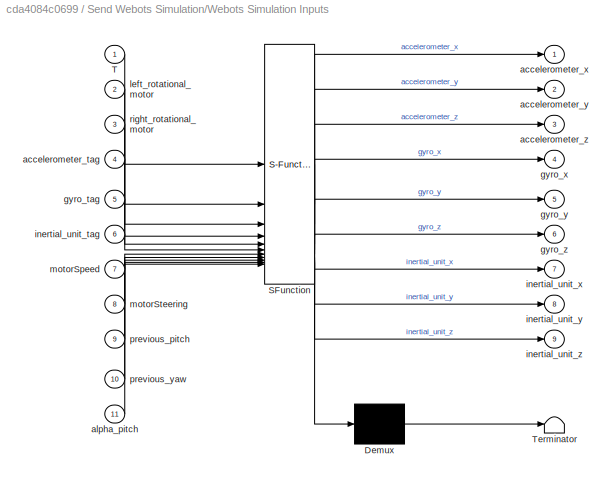
BLOCK [SubSystem] Send Webots Simulation/Webots Simulation Inputs
  ErrorFcn = Stateflow.Translate.translate
  PermitHierarchicalResolution = ExplicitOnly
  SFBlockType = MATLAB Function
  TreatAsAtomicUnit = on
BLOCK [Demux] Send Webots Simulation/Webots Simulation Inputs/ Demux 
  Outputs = 1
BLOCK [S-Function] Send Webots Simulation/Webots Simulation Inputs/ SFunction 
  EnableBusSupport = on
  FunctionName = sf_sfun
  PortCounts = [11 10]
  SFcnIsStateOwnerBlock = off
  SFunctionDeploymentMode = off
  Tag = Stateflow S-Function 2
BLOCK [Terminator] Send Webots Simulation/Webots Simulation Inputs/ Terminator 
BLOCK [Inport] Send Webots Simulation/Webots Simulation Inputs/T
BLOCK [Inport] Send Webots Simulation/Webots Simulation Inputs/accelerometer_tag
  Port = 4
BLOCK [Outport] Send Webots Simulation/Webots Simulation Inputs/accelerometer_x
BLOCK [Outport] Send Webots Simulation/Webots Simulation Inputs/accelerometer_y
  Port = 2
BLOCK [Outport] Send Webots Simulation/Webots Simulation Inputs/accelerometer_z
  Port = 3
BLOCK [Inport] Send Webots Simulation/Webots Simulation Inputs/alpha_pitch
  Port = 11
BLOCK [Inport] Send Webots Simulation/Webots Simulation Inputs/gyro_tag
  Port = 5
BLOCK [Outport] Send Webots Simulation/Webots Simulation Inputs/gyro_x
  Port = 4
BLOCK [Outport] Send Webots Simulation/Webots Simulation Inputs/gyro_y
  Port = 5
BLOCK [Outport] Send Webots Simulation/Webots Simulation Inputs/gyro_z
  Port = 6
BLOCK [Inport] Send Webots Simulation/Webots Simulation Inputs/inertial_unit_tag
  Port = 6
BLOCK [Outport] Send Webots Simulation/Webots Simulation Inputs/inertial_unit_x
  Port = 7
BLOCK [Outport] Send Webots Simulation/Webots Simulation Inputs/inertial_unit_y
  Port = 8
BLOCK [Outport] Send Webots Simulation/Webots Simulation Inputs/inertial_unit_z
  Port = 9
BLOCK [Inport] Send Webots Simulation/Webots Simulation Inputs/left_rotational_motor
  Port = 2
BLOCK [Inport] Send Webots Simulation/Webots Simulation Inputs/motorSpeed
  Port = 7
BLOCK [Inport] Send Webots Simulation/Webots Simulation Inputs/motorSteering
  Port = 8
BLOCK [Inport] Send Webots Simulation/Webots Simulation Inputs/previous_pitch
  Port = 9
BLOCK [Inport] Send Webots Simulation/Webots Simulation Inputs/previous_yaw
  Port = 10
BLOCK [Inport] Send Webots Simulation/Webots Simulation Inputs/right_rotational_motor
  Port = 3
BLOCK [Outport] Send Webots Simulation/accelerometer_bus
BLOCK [Outport] Send Webots Simulation/gyro_bus
  Port = 2
BLOCK [Outport] Send Webots Simulation/inertial_unit_bus
  Port = 3
BLOCK [Inport] Send Webots Simulation/motorSpeed
BLOCK [Inport] Send Webots Simulation/motorSteering
  Port = 2
BLOCK [SliderBlock] Slider
  ScaleMax = 22.5
  ScaleMin = -22.5
  TickInterval = 2.5
BLOCK [SliderBlock] Slider1
  ScaleMax = 22.5
  ScaleMin = -22.5
  TickInterval = 2.5
BLOCK [SliderBlock] Slider2
  ScaleMax = 4
BLOCK [SliderBlock] Slider3
  ScaleMax = 150
  ScaleMin = -150
  TickInterval = 10
BLOCK [SliderBlock] Slider4
  ScaleMax = 1
  ScaleMin = -1
BLOCK [Sum] Sum
  Inputs = |++
BLOCK [Sum] Sum1
  Inputs = |++
BLOCK [Constant] desired_pitch
  Value = 4
BLOCK [Constant] desired_x
  Value = 0
BLOCK [Constant] desired_yaw
  Value = 60.53190078259715
BLOCK [Constant] motorSpeed
  Value = 0
BLOCK [Gain] motorSpeedGain
  Gain = 1/2
BLOCK [Constant] motorSteering
  Value = 0
BLOCK [Gain] motorSteeringGain
  Gain = 1/2
ANNOTATION Control Architecture/Subsystem: buadaki kod kısmından simulink blokalrına dönüşütülüşütür
ANNOTATION Control Architecture/Subsystem6: yaw_error
ANNOTATION Control Architecture/Subsystem6: Subsystem6
LINE Control Architecture/Abs1:1 -> Control Architecture/Relational Operator5:2
LINE Control Architecture/Abs2:1 -> Control Architecture/Relational Operator6:1
LINE Control Architecture/Add3:1 -> Control Architecture/Subsystem2:1
LINE Control Architecture/Bus Creator1:1 -> Control Architecture/Scope3:1
LINE Control Architecture/Bus Creator:1 -> Control Architecture/Scope1:1
LINE Control Architecture/Calculate_Yaw_Difference2:1 -> Control Architecture/Subsystem4:2
LINE Control Architecture/Constant5:1 -> Control Architecture/Relational Operator5:1
LINE Control Architecture/Constant6:1 -> Control Architecture/yaw_error :3
LINE Control Architecture/Constant7:1 -> Control Architecture/Relational Operator6:2
LINE Control Architecture/Constant8:1 -> Control Architecture/ 2:1
LINE Control Architecture/Differential Drive Kinematic Model:1 -> Control Architecture/Scope4:1
LINE Control Architecture/Differential Drive Kinematic Model:2 -> Control Architecture/Terminator:1
NET Control Architecture/Last_Desired_Yaw:1 -> Control Architecture/Abs1:1, Control Architecture/yaw_error :1
NET Control Architecture/Low-Pass Filter (Discrete or Continuous)1:1 -> Control Architecture/Bus Creator1:3, Control Architecture/motorSteering:1
LINE Control Architecture/Low-Pass Filter (Discrete or Continuous):1 -> Control Architecture/Saturation1:1
LINE Control Architecture/MATLAB Function1:1 -> Control Architecture/MATLAB Function:1
LINE Control Architecture/MATLAB Function1:2 -> Control Architecture/MATLAB Function:2
LINE Control Architecture/MATLAB Function1:3 -> Control Architecture/MATLAB Function:3
LINE Control Architecture/Mux:1 -> Control Architecture/Scope:1
NET Control Architecture/Radians to Degrees1:1 -> Control Architecture/Add3:1, Control Architecture/Bus Creator:1, Control Architecture/Subsystem4:1
NET Control Architecture/Radians to Degrees:1 -> Control Architecture/Bus Creator1:1, Control Architecture/Calculate_Yaw_Difference2:1
LINE Control Architecture/Relational Operator4:1 -> Control Architecture/Last_Desired_Yaw:2
LINE Control Architecture/Relational Operator5:1 -> Control Architecture/yaw_error :2
LINE Control Architecture/Relational Operator6:1 -> Control Architecture/ 2:2
NET Control Architecture/Saturation1:1 -> Control Architecture/Bus Creator:3, Control Architecture/Subsystem4:3, Control Architecture/motorSpeed:1
LINE Control Architecture/Subsystem/Bus Creator1:1 -> Control Architecture/Subsystem/Out1:1
LINE Control Architecture/Subsystem/Derivative2:1 -> Control Architecture/Subsystem/Gain8:1
LINE Control Architecture/Subsystem/Gain3:1 -> Control Architecture/Subsystem/Sum2:1
NET Control Architecture/Subsystem/Gain4:1 -> Control Architecture/Subsystem/Bus Creator1:1, Control Architecture/Subsystem/Derivative2:1, Control Architecture/Subsystem/Gain3:1, Control Architecture/Subsystem/Integrator2:1, Control Architecture/Subsystem/yaw_sensitivity 1:1
LINE Control Architecture/Subsystem/Gain7:1 -> Control Architecture/Subsystem/Sum2:2
LINE Control Architecture/Subsystem/Gain8:1 -> Control Architecture/Subsystem/Sum2:3
LINE Control Architecture/Subsystem/In3:1 -> Control Architecture/Subsystem/Sign1:1
LINE Control Architecture/Subsystem/In4:1 -> Control Architecture/Subsystem/Scope4:2
LINE Control Architecture/Subsystem/Integrator2:1 -> Control Architecture/Subsystem/Gain7:1
NET Control Architecture/Subsystem/Product1:1 -> Control Architecture/Subsystem/Display5:1, Control Architecture/Subsystem/Unit Delay1:1
NET Control Architecture/Subsystem/Saturation3:1 -> Control Architecture/Subsystem/Bus Creator1:3, Control Architecture/Subsystem/Display6:1, Control Architecture/Subsystem/Scope4:1, Control Architecture/Subsystem/stuartionmotospeed:1
LINE Control Architecture/Subsystem/Sign1:1 -> Control Architecture/Subsystem/Product1:2
NET Control Architecture/Subsystem/Subsystem1/Abs2:1 -> Control Architecture/Subsystem/Subsystem1/Relational Operator1:1, Control Architecture/Subsystem/Subsystem1/Relational Operator:1
LINE Control Architecture/Subsystem/Subsystem1/Constant1:1 -> Control Architecture/Subsystem/Subsystem1/büyük hata hesabı:2
LINE Control Architecture/Subsystem/Subsystem1/Constant4:1 -> Control Architecture/Subsystem/Subsystem1/Relational Operator:2
LINE Control Architecture/Subsystem/Subsystem1/Constant5:1 -> Control Architecture/Subsystem/Subsystem1/Relational Operator1:2
LINE Control Architecture/Subsystem/Subsystem1/Constant6:1 -> Control Architecture/Subsystem/Subsystem1/Switch A:1
LINE Control Architecture/Subsystem/Subsystem1/Constant7:1 -> Control Architecture/Subsystem/Subsystem1/orta hata hesabı:2
LINE Control Architecture/Subsystem/Subsystem1/Relational Operator1:1 -> Control Architecture/Subsystem/Subsystem1/Switch B:2
LINE Control Architecture/Subsystem/Subsystem1/Relational Operator:1 -> Control Architecture/Subsystem/Subsystem1/Switch A:2
NET Control Architecture/Subsystem/Subsystem1/Switch A:1 -> Control Architecture/Subsystem/Subsystem1/büyük hata hesabı:1, Control Architecture/Subsystem/Subsystem1/orta hata hesabı:1
LINE Control Architecture/Subsystem/Subsystem1/Switch B:1 -> Control Architecture/Subsystem/Subsystem1/Out1:1
LINE Control Architecture/Subsystem/Subsystem1/büyük hata hesabı:1 -> Control Architecture/Subsystem/Subsystem1/Switch B:3
LINE Control Architecture/Subsystem/Subsystem1/orta hata hesabı:1 -> Control Architecture/Subsystem/Subsystem1/Switch B:1
NET Control Architecture/Subsystem/Subsystem1/pitch_sensitivity:1 -> Control Architecture/Subsystem/Subsystem1/büyük hata hesabı:3, Control Architecture/Subsystem/Subsystem1/orta hata hesabı:3
NET Control Architecture/Subsystem/Subsystem1/pıd_output:1 -> Control Architecture/Subsystem/Subsystem1/Abs2:1, Control Architecture/Subsystem/Subsystem1/Switch A:3
NET Control Architecture/Subsystem/Subsystem1/yaw_sensitivity:1 -> Control Architecture/Subsystem/Subsystem1/büyük hata hesabı:4, Control Architecture/Subsystem/Subsystem1/orta hata hesabı:4
NET Control Architecture/Subsystem/Subsystem1:1 -> Control Architecture/Subsystem/Display7:1, Control Architecture/Subsystem/Product1:1
NET Control Architecture/Subsystem/Sum2:1 -> Control Architecture/Subsystem/Bus Creator1:2, Control Architecture/Subsystem/Subsystem1:1
NET Control Architecture/Subsystem/Unit Delay1:1 -> Control Architecture/Subsystem/Bus Creator1:4, Control Architecture/Subsystem/Saturation3:1
LINE Control Architecture/Subsystem/pitch_error:1 -> Control Architecture/Subsystem/pitch_sensitivity 1:1
LINE Control Architecture/Subsystem/pitch_sensitivity 1/Abs:1 -> Control Architecture/Subsystem/pitch_sensitivity 1/Divide:1
LINE Control Architecture/Subsystem/pitch_sensitivity 1/Constant1:1 -> Control Architecture/Subsystem/pitch_sensitivity 1/Sum2:2
LINE Control Architecture/Subsystem/pitch_sensitivity 1/Constant:1 -> Control Architecture/Subsystem/pitch_sensitivity 1/Divide:2
LINE Control Architecture/Subsystem/pitch_sensitivity 1/Divide:1 -> Control Architecture/Subsystem/pitch_sensitivity 1/Sum2:1
LINE Control Architecture/Subsystem/pitch_sensitivity 1/Saturation:1 -> Control Architecture/Subsystem/pitch_sensitivity 1/Out1:1
LINE Control Architecture/Subsystem/pitch_sensitivity 1/Sum2:1 -> Control Architecture/Subsystem/pitch_sensitivity 1/Saturation:1
LINE Control Architecture/Subsystem/pitch_sensitivity 1/pitch_error:1 -> Control Architecture/Subsystem/pitch_sensitivity 1/Abs:1
NET Control Architecture/Subsystem/pitch_sensitivity 1:1 -> Control Architecture/Subsystem/Scope4:3, Control Architecture/Subsystem/Subsystem1:2
LINE Control Architecture/Subsystem/yaw_error:1 -> Control Architecture/Subsystem/Gain4:1
LINE Control Architecture/Subsystem/yaw_sensitivity 1/Abs1:1 -> Control Architecture/Subsystem/yaw_sensitivity 1/Divide1:1
LINE Control Architecture/Subsystem/yaw_sensitivity 1/Constant2:1 -> Control Architecture/Subsystem/yaw_sensitivity 1/Divide1:2
LINE Control Architecture/Subsystem/yaw_sensitivity 1/Constant3:1 -> Control Architecture/Subsystem/yaw_sensitivity 1/Sum3:2
LINE Control Architecture/Subsystem/yaw_sensitivity 1/Divide1:1 -> Control Architecture/Subsystem/yaw_sensitivity 1/Sum3:1
LINE Control Architecture/Subsystem/yaw_sensitivity 1/Saturation3:1 -> Control Architecture/Subsystem/yaw_sensitivity 1/Out1:1
LINE Control Architecture/Subsystem/yaw_sensitivity 1/Sum3:1 -> Control Architecture/Subsystem/yaw_sensitivity 1/Saturation3:1
LINE Control Architecture/Subsystem/yaw_sensitivity 1/yaw_error:1 -> Control Architecture/Subsystem/yaw_sensitivity 1/Abs1:1
NET Control Architecture/Subsystem/yaw_sensitivity 1:1 -> Control Architecture/Subsystem/Scope4:4, Control Architecture/Subsystem/Subsystem1:3
LINE Control Architecture/Subsystem1/Product:1 -> Control Architecture/Subsystem1/Out1:1
LINE Control Architecture/Subsystem1/Sign:1 -> Control Architecture/Subsystem1/Product:2
NET Control Architecture/Subsystem1/Subsystem3/Abs2:1 -> Control Architecture/Subsystem1/Subsystem3/Relational Operator1:1, Control Architecture/Subsystem1/Subsystem3/Relational Operator:1
LINE Control Architecture/Subsystem1/Subsystem3/Constant1:1 -> Control Architecture/Subsystem1/Subsystem3/büyük hata hesabı:2
LINE Control Architecture/Subsystem1/Subsystem3/Constant4:1 -> Control Architecture/Subsystem1/Subsystem3/Relational Operator:2
LINE Control Architecture/Subsystem1/Subsystem3/Constant5:1 -> Control Architecture/Subsystem1/Subsystem3/Relational Operator1:2
LINE Control Architecture/Subsystem1/Subsystem3/Constant6:1 -> Control Architecture/Subsystem1/Subsystem3/Switch A:1
LINE Control Architecture/Subsystem1/Subsystem3/Constant7:1 -> Control Architecture/Subsystem1/Subsystem3/orta hata hesabı:2
LINE Control Architecture/Subsystem1/Subsystem3/Relational Operator1:1 -> Control Architecture/Subsystem1/Subsystem3/Switch B:2
LINE Control Architecture/Subsystem1/Subsystem3/Relational Operator:1 -> Control Architecture/Subsystem1/Subsystem3/Switch A:2
NET Control Architecture/Subsystem1/Subsystem3/Switch A:1 -> Control Architecture/Subsystem1/Subsystem3/büyük hata hesabı:1, Control Architecture/Subsystem1/Subsystem3/orta hata hesabı:1
LINE Control Architecture/Subsystem1/Subsystem3/Switch B:1 -> Control Architecture/Subsystem1/Subsystem3/Out1:1
LINE Control Architecture/Subsystem1/Subsystem3/büyük hata hesabı:1 -> Control Architecture/Subsystem1/Subsystem3/Switch B:3
LINE Control Architecture/Subsystem1/Subsystem3/orta hata hesabı:1 -> Control Architecture/Subsystem1/Subsystem3/Switch B:1
NET Control Architecture/Subsystem1/Subsystem3/pitch_sensitivity:1 -> Control Architecture/Subsystem1/Subsystem3/büyük hata hesabı:3, Control Architecture/Subsystem1/Subsystem3/orta hata hesabı:3
NET Control Architecture/Subsystem1/Subsystem3/pıd_output:1 -> Control Architecture/Subsystem1/Subsystem3/Abs2:1, Control Architecture/Subsystem1/Subsystem3/Switch A:3
NET Control Architecture/Subsystem1/Subsystem3/yaw_sensitivity:1 -> Control Architecture/Subsystem1/Subsystem3/büyük hata hesabı:4, Control Architecture/Subsystem1/Subsystem3/orta hata hesabı:4
NET Control Architecture/Subsystem1/Subsystem3:1 -> Control Architecture/Subsystem1/Display4:1, Control Architecture/Subsystem1/Product:1
LINE Control Architecture/Subsystem1/desired_yaw:1 -> Control Architecture/Subsystem1/yaw_sensitivity 1:1
LINE Control Architecture/Subsystem1/pitch_error1:1 -> Control Architecture/Subsystem1/pitch_sensitivity 1:1
LINE Control Architecture/Subsystem1/pitch_error:1 -> Control Architecture/Subsystem1/pitch_sensitivity :1
LINE Control Architecture/Subsystem1/pitch_sensitivity /Abs:1 -> Control Architecture/Subsystem1/pitch_sensitivity /Divide:1
LINE Control Architecture/Subsystem1/pitch_sensitivity /Constant1:1 -> Control Architecture/Subsystem1/pitch_sensitivity /Sum2:2
LINE Control Architecture/Subsystem1/pitch_sensitivity /Constant:1 -> Control Architecture/Subsystem1/pitch_sensitivity /Divide:2
LINE Control Architecture/Subsystem1/pitch_sensitivity /Divide:1 -> Control Architecture/Subsystem1/pitch_sensitivity /Sum2:1
LINE Control Architecture/Subsystem1/pitch_sensitivity /Saturation:1 -> Control Architecture/Subsystem1/pitch_sensitivity /Out1:1
LINE Control Architecture/Subsystem1/pitch_sensitivity /Sum2:1 -> Control Architecture/Subsystem1/pitch_sensitivity /Saturation:1
LINE Control Architecture/Subsystem1/pitch_sensitivity /pitch_error:1 -> Control Architecture/Subsystem1/pitch_sensitivity /Abs:1
LINE Control Architecture/Subsystem1/pitch_sensitivity 1/Abs:1 -> Control Architecture/Subsystem1/pitch_sensitivity 1/Gain:1
LINE Control Architecture/Subsystem1/pitch_sensitivity 1/Constant1:1 -> Control Architecture/Subsystem1/pitch_sensitivity 1/Sum2:2
LINE Control Architecture/Subsystem1/pitch_sensitivity 1/Gain:1 -> Control Architecture/Subsystem1/pitch_sensitivity 1/Sum2:1
LINE Control Architecture/Subsystem1/pitch_sensitivity 1/Saturation:1 -> Control Architecture/Subsystem1/pitch_sensitivity 1/Out1:1
LINE Control Architecture/Subsystem1/pitch_sensitivity 1/Sum2:1 -> Control Architecture/Subsystem1/pitch_sensitivity 1/Saturation:1
LINE Control Architecture/Subsystem1/pitch_sensitivity 1/pitch_error:1 -> Control Architecture/Subsystem1/pitch_sensitivity 1/Abs:1
LINE Control Architecture/Subsystem1/pitch_sensitivity 1:1 -> Control Architecture/Subsystem1/pitch_sensitivity:1
LINE Control Architecture/Subsystem1/pitch_sensitivity :1 -> Control Architecture/Subsystem1/Subsystem3:2
LINE Control Architecture/Subsystem1/pıd_output:1 -> Control Architecture/Subsystem1/Subsystem3:1
LINE Control Architecture/Subsystem1/yaw_error:1 -> Control Architecture/Subsystem1/yaw_sensitivity :1
LINE Control Architecture/Subsystem1/yaw_sensitivity /Abs1:1 -> Control Architecture/Subsystem1/yaw_sensitivity /Divide1:1
LINE Control Architecture/Subsystem1/yaw_sensitivity /Constant2:1 -> Control Architecture/Subsystem1/yaw_sensitivity /Divide1:2
LINE Control Architecture/Subsystem1/yaw_sensitivity /Constant3:1 -> Control Architecture/Subsystem1/yaw_sensitivity /Sum3:2
LINE Control Architecture/Subsystem1/yaw_sensitivity /Constant:1 -> Control Architecture/Subsystem1/yaw_sensitivity /Max:2
LINE Control Architecture/Subsystem1/yaw_sensitivity /Divide1:1 -> Control Architecture/Subsystem1/yaw_sensitivity /Sum3:1
LINE Control Architecture/Subsystem1/yaw_sensitivity /Max:1 -> Control Architecture/Subsystem1/yaw_sensitivity /Out1:1
LINE Control Architecture/Subsystem1/yaw_sensitivity /Sum3:1 -> Control Architecture/Subsystem1/yaw_sensitivity /Max:1
LINE Control Architecture/Subsystem1/yaw_sensitivity /yaw_error:1 -> Control Architecture/Subsystem1/yaw_sensitivity /Abs1:1
LINE Control Architecture/Subsystem1/yaw_sensitivity 1/Abs1:1 -> Control Architecture/Subsystem1/yaw_sensitivity 1/Switch:2
LINE Control Architecture/Subsystem1/yaw_sensitivity 1/Constant1:1 -> Control Architecture/Subsystem1/yaw_sensitivity 1/Switch:3
LINE Control Architecture/Subsystem1/yaw_sensitivity 1/Switch:1 -> Control Architecture/Subsystem1/yaw_sensitivity 1/Out1:1
NET Control Architecture/Subsystem1/yaw_sensitivity 1/desired_yaw:1 -> Control Architecture/Subsystem1/yaw_sensitivity 1/Abs1:1, Control Architecture/Subsystem1/yaw_sensitivity 1/Switch:1
LINE Control Architecture/Subsystem1/yaw_sensitivity 1:1 -> Control Architecture/Subsystem1/yaw_sensitivity:1
NET Control Architecture/Subsystem1/yaw_sensitivity :1 -> Control Architecture/Subsystem1/Sign:1, Control Architecture/Subsystem1/Subsystem3:3
LINE Control Architecture/Subsystem2/1-D Lookup Table:1 -> Control Architecture/Subsystem2/control_output_mapped:2
LINE Control Architecture/Subsystem2/Constant:1 -> Control Architecture/Subsystem2/Relational Operator:2
LINE Control Architecture/Subsystem2/Derivative:1 -> Control Architecture/Subsystem2/Gain4:1
LINE Control Architecture/Subsystem2/Gain2:1 -> Control Architecture/Subsystem2/Sum:1
LINE Control Architecture/Subsystem2/Gain3:1 -> Control Architecture/Subsystem2/Sum:2
LINE Control Architecture/Subsystem2/Gain4:1 -> Control Architecture/Subsystem2/Sum:3
LINE Control Architecture/Subsystem2/Gain:1 -> Control Architecture/Subsystem2/Switch2:3
LINE Control Architecture/Subsystem2/Integrator:1 -> Control Architecture/Subsystem2/Gain3:1
LINE Control Architecture/Subsystem2/Relational Operator:1 -> Control Architecture/Subsystem2/Switch2:2
LINE Control Architecture/Subsystem2/Saturation:1 -> Control Architecture/Subsystem2/control_output_mapped:1
LINE Control Architecture/Subsystem2/Subsystem1/1-D Lookup Table:1 -> Control Architecture/Subsystem2/Subsystem1/Out3:1
LINE Control Architecture/Subsystem2/Subsystem1/AND:1 -> Control Architecture/Subsystem2/Subsystem1/Switch1:1
NET Control Architecture/Subsystem2/Subsystem1/Abs:1 -> Control Architecture/Subsystem2/Subsystem1/Relational Operator1:1, Control Architecture/Subsystem2/Subsystem1/Relational Operator2:1, Control Architecture/Subsystem2/Subsystem1/Relational Operator:1
LINE Control Architecture/Subsystem2/Subsystem1/Constant1:1 -> Control Architecture/Subsystem2/Subsystem1/Relational Operator1:2
LINE Control Architecture/Subsystem2/Subsystem1/Constant2:1 -> Control Architecture/Subsystem2/Subsystem1/Relational Operator2:2
LINE Control Architecture/Subsystem2/Subsystem1/Constant:1 -> Control Architecture/Subsystem2/Subsystem1/Relational Operator:2
LINE Control Architecture/Subsystem2/Subsystem1/Gain1:1 -> Control Architecture/Subsystem2/Subsystem1/Switch2:2
LINE Control Architecture/Subsystem2/Subsystem1/Gain5:1 -> Control Architecture/Subsystem2/Subsystem1/Switch1:2
LINE Control Architecture/Subsystem2/Subsystem1/Gain6:1 -> Control Architecture/Subsystem2/Subsystem1/Switch:2
NET Control Architecture/Subsystem2/Subsystem1/In2:1 -> Control Architecture/Subsystem2/Subsystem1/1-D Lookup Table:1, Control Architecture/Subsystem2/Subsystem1/Abs:1
LINE Control Architecture/Subsystem2/Subsystem1/In4:1 -> Control Architecture/Subsystem2/Subsystem1/Switch2:3
LINE Control Architecture/Subsystem2/Subsystem1/Relational Operator1:1 -> Control Architecture/Subsystem2/Subsystem1/AND:2
LINE Control Architecture/Subsystem2/Subsystem1/Relational Operator2:1 -> Control Architecture/Subsystem2/Subsystem1/Switch2:1
NET Control Architecture/Subsystem2/Subsystem1/Relational Operator:1 -> Control Architecture/Subsystem2/Subsystem1/AND:1, Control Architecture/Subsystem2/Subsystem1/Switch:1
LINE Control Architecture/Subsystem2/Subsystem1/Switch1:1 -> Control Architecture/Subsystem2/Subsystem1/Switch:3
LINE Control Architecture/Subsystem2/Subsystem1/Switch2:1 -> Control Architecture/Subsystem2/Subsystem1/Switch1:3
LINE Control Architecture/Subsystem2/Subsystem1/Switch:1 -> Control Architecture/Subsystem2/Subsystem1/Out2:1
NET Control Architecture/Subsystem2/Subsystem1/control_output:1 -> Control Architecture/Subsystem2/Subsystem1/Gain1:1, Control Architecture/Subsystem2/Subsystem1/Gain5:1, Control Architecture/Subsystem2/Subsystem1/Gain6:1
LINE Control Architecture/Subsystem2/Sum:1 -> Control Architecture/Subsystem2/Saturation:1
LINE Control Architecture/Subsystem2/Switch2:1 -> Control Architecture/Subsystem2/y:1
NET Control Architecture/Subsystem2/control_output_mapped:1 -> Control Architecture/Subsystem2/Gain:1, Control Architecture/Subsystem2/Switch2:1
NET Control Architecture/Subsystem2/pitch_error:1 -> Control Architecture/Subsystem2/1-D Lookup Table:1, Control Architecture/Subsystem2/Derivative:1, Control Architecture/Subsystem2/Gain2:1, Control Architecture/Subsystem2/Integrator:1, Control Architecture/Subsystem2/Relational Operator:1
LINE Control Architecture/Subsystem2:1 -> Control Architecture/Unit Delay:1
NET Control Architecture/Subsystem3/Gain:1 -> Control Architecture/Subsystem3/MATLAB Function4:2, Control Architecture/Subsystem3/matlabfuniconçıkışı:1
NET Control Architecture/Subsystem3/In2:1 -> Control Architecture/Subsystem3/Display7:1, Control Architecture/Subsystem3/MATLAB Function3:1, Control Architecture/Subsystem3/MATLAB Function4:1
LINE Control Architecture/Subsystem3/In3:1 -> Control Architecture/Subsystem3/Unit Delay1:1
LINE Control Architecture/Subsystem3/In5:1 -> Control Architecture/Subsystem3/Gain:1
LINE Control Architecture/Subsystem3/MATLAB Function3:1 -> Control Architecture/Subsystem3/motorSteering:1
LINE Control Architecture/Subsystem3/MATLAB Function4:1 -> Control Architecture/Subsystem3/motorSteering1:1
LINE Control Architecture/Subsystem3/Unit Delay1:1 -> Control Architecture/Subsystem3/Out2:1
LINE Control Architecture/Subsystem3/measured_yaw:1 -> Control Architecture/Subsystem3/MATLAB Function3:2
LINE Control Architecture/Subsystem3/pitch_error:1 -> Control Architecture/Subsystem3/MATLAB Function3:3
LINE Control Architecture/Subsystem4/Abs1:1 -> Control Architecture/Subsystem4/Sum:1
NET Control Architecture/Subsystem4/Abs2:1 -> Control Architecture/Subsystem4/If:1, Control Architecture/Subsystem4/Switch2:2
NET Control Architecture/Subsystem4/Abs:1 -> Control Architecture/Subsystem4/Relational Operator2:2, Control Architecture/Subsystem4/Relational Operator:1
LINE Control Architecture/Subsystem4/Constant1:1 -> Control Architecture/Subsystem4/Switch:3
LINE Control Architecture/Subsystem4/Constant2:1 -> Control Architecture/Subsystem4/Relational Operator1:1
LINE Control Architecture/Subsystem4/Constant3:1 -> Control Architecture/Subsystem4/Relational Operator2:1
LINE Control Architecture/Subsystem4/Constant4:1 -> Control Architecture/Subsystem4/Switch1:1
LINE Control Architecture/Subsystem4/Constant5:1 -> Control Architecture/Subsystem4/Sum:2
LINE Control Architecture/Subsystem4/Constant6:1 -> Control Architecture/Subsystem4/Switch2:3
LINE Control Architecture/Subsystem4/Constant7:1 -> Control Architecture/Subsystem4/Switch2:1
LINE Control Architecture/Subsystem4/Constant:1 -> Control Architecture/Subsystem4/Relational Operator:2
LINE Control Architecture/Subsystem4/From:1 -> Control Architecture/Subsystem4/Switch1:2
LINE Control Architecture/Subsystem4/Gain:1 -> Control Architecture/Subsystem4/Saturation:1
LINE Control Architecture/Subsystem4/If Action Subsystem/Derivative1:1 -> Control Architecture/Subsystem4/If Action Subsystem/kd2:1
LINE Control Architecture/Subsystem4/If Action Subsystem/Integrator1:1 -> Control Architecture/Subsystem4/If Action Subsystem/ki2:1
LINE Control Architecture/Subsystem4/If Action Subsystem/Sum4:1 -> Control Architecture/Subsystem4/If Action Subsystem/Out2:1
NET Control Architecture/Subsystem4/If Action Subsystem/desired_yaw:1 -> Control Architecture/Subsystem4/If Action Subsystem/Derivative1:1, Control Architecture/Subsystem4/If Action Subsystem/Integrator1:1, Control Architecture/Subsystem4/If Action Subsystem/kp2:1
LINE Control Architecture/Subsystem4/If Action Subsystem/kd2:1 -> Control Architecture/Subsystem4/If Action Subsystem/Sum4:3
LINE Control Architecture/Subsystem4/If Action Subsystem/ki2:1 -> Control Architecture/Subsystem4/If Action Subsystem/Sum4:2
LINE Control Architecture/Subsystem4/If Action Subsystem/kp2:1 -> Control Architecture/Subsystem4/If Action Subsystem/Sum4:1
LINE Control Architecture/Subsystem4/If Action Subsystem1/Derivative1:1 -> Control Architecture/Subsystem4/If Action Subsystem1/kd2:1
LINE Control Architecture/Subsystem4/If Action Subsystem1/Integrator1:1 -> Control Architecture/Subsystem4/If Action Subsystem1/ki2:1
LINE Control Architecture/Subsystem4/If Action Subsystem1/Sum4:1 -> Control Architecture/Subsystem4/If Action Subsystem1/Out2:1
NET Control Architecture/Subsystem4/If Action Subsystem1/desired_yaw:1 -> Control Architecture/Subsystem4/If Action Subsystem1/Derivative1:1, Control Architecture/Subsystem4/If Action Subsystem1/Integrator1:1, Control Architecture/Subsystem4/If Action Subsystem1/kp2:1
LINE Control Architecture/Subsystem4/If Action Subsystem1/kd2:1 -> Control Architecture/Subsystem4/If Action Subsystem1/Sum4:3
LINE Control Architecture/Subsystem4/If Action Subsystem1/ki2:1 -> Control Architecture/Subsystem4/If Action Subsystem1/Sum4:2
LINE Control Architecture/Subsystem4/If Action Subsystem1/kp2:1 -> Control Architecture/Subsystem4/If Action Subsystem1/Sum4:1
LINE Control Architecture/Subsystem4/If Action Subsystem1:1 -> Control Architecture/Subsystem4/Sum1:2
LINE Control Architecture/Subsystem4/If Action Subsystem2/Constant:1 -> Control Architecture/Subsystem4/If Action Subsystem2/Out1:1
LINE Control Architecture/Subsystem4/If Action Subsystem2:1 -> Control Architecture/Subsystem4/Sum1:3
LINE Control Architecture/Subsystem4/If Action Subsystem:1 -> Control Architecture/Subsystem4/Sum1:1
LINE Control Architecture/Subsystem4/If:1 -> Control Architecture/Subsystem4/If Action Subsystem:ifaction
LINE Control Architecture/Subsystem4/If:2 -> Control Architecture/Subsystem4/If Action Subsystem1:ifaction
LINE Control Architecture/Subsystem4/If:3 -> Control Architecture/Subsystem4/If Action Subsystem2:ifaction
LINE Control Architecture/Subsystem4/Product:1 -> Control Architecture/Subsystem4/Subsystem:2
LINE Control Architecture/Subsystem4/Relational Operator1:1 -> Control Architecture/Subsystem4/Goto:1
LINE Control Architecture/Subsystem4/Relational Operator2:1 -> Control Architecture/Subsystem4/Relational Operator1:2
LINE Control Architecture/Subsystem4/Relational Operator:1 -> Control Architecture/Subsystem4/Switch:2
LINE Control Architecture/Subsystem4/Saturation:1 -> Control Architecture/Subsystem4/Product:1
NET Control Architecture/Subsystem4/Subsystem/Constant:1 -> Control Architecture/Subsystem4/Subsystem/Gain1:1, Control Architecture/Subsystem4/Subsystem/Sum1:1
LINE Control Architecture/Subsystem4/Subsystem/Divide:1 -> Control Architecture/Subsystem4/Subsystem/Product:2
NET Control Architecture/Subsystem4/Subsystem/Gain1:1 -> Control Architecture/Subsystem4/Subsystem/Sum1:2, Control Architecture/Subsystem4/Subsystem/Sum3:2
LINE Control Architecture/Subsystem4/Subsystem/Gain2:1 -> Control Architecture/Subsystem4/Subsystem/Sum2:1
LINE Control Architecture/Subsystem4/Subsystem/Gain:1 -> Control Architecture/Subsystem4/Subsystem/Sum:2
LINE Control Architecture/Subsystem4/Subsystem/Product:1 -> Control Architecture/Subsystem4/Subsystem/Sum3:1
LINE Control Architecture/Subsystem4/Subsystem/Sum1:1 -> Control Architecture/Subsystem4/Subsystem/Divide:1
LINE Control Architecture/Subsystem4/Subsystem/Sum2:1 -> Control Architecture/Subsystem4/Subsystem/Divide:2
LINE Control Architecture/Subsystem4/Subsystem/Sum3:1 -> Control Architecture/Subsystem4/Subsystem/u2:1
NET Control Architecture/Subsystem4/Subsystem/Sum:1 -> Control Architecture/Subsystem4/Subsystem/Display:1, Control Architecture/Subsystem4/Subsystem/Product:1
NET Control Architecture/Subsystem4/Subsystem/motorSpeed:1 -> Control Architecture/Subsystem4/Subsystem/Gain2:1, Control Architecture/Subsystem4/Subsystem/Gain:1, Control Architecture/Subsystem4/Subsystem/Sum2:2
LINE Control Architecture/Subsystem4/Subsystem/motorSteering:1 -> Control Architecture/Subsystem4/Subsystem/Sum:1
LINE Control Architecture/Subsystem4/Subsystem:1 -> Control Architecture/Subsystem4/motorSteering:1
LINE Control Architecture/Subsystem4/Sum1:1 -> Control Architecture/Subsystem4/Gain:1
LINE Control Architecture/Subsystem4/Sum:1 -> Control Architecture/Subsystem4/Subsystem:1
LINE Control Architecture/Subsystem4/Switch2:1 -> Control Architecture/Subsystem4/Product:2
NET Control Architecture/Subsystem4/desired_yaw:1 -> Control Architecture/Subsystem4/If Action Subsystem1:1, Control Architecture/Subsystem4/If Action Subsystem:1
NET Control Architecture/Subsystem4/inertial_unit_y:1 -> Control Architecture/Subsystem4/Abs2:1, Control Architecture/Subsystem4/Display1:1
LINE Control Architecture/Subsystem4/motorSpeed:1 -> Control Architecture/Subsystem4/Abs1:1
LINE Control Architecture/Subsystem4:1 -> Control Architecture/Unit Delay5:1
LINE Control Architecture/Subsystem5/1-D Lookup Table:1 -> Control Architecture/Subsystem5/control_output_mapped:2
LINE Control Architecture/Subsystem5/Constant:1 -> Control Architecture/Subsystem5/Relational Operator:2
LINE Control Architecture/Subsystem5/Derivative:1 -> Control Architecture/Subsystem5/Gain4:1
NET Control Architecture/Subsystem5/Gain1:1 -> Control Architecture/Subsystem5/1-D Lookup Table:1, Control Architecture/Subsystem5/Derivative:1, Control Architecture/Subsystem5/Display10:1, Control Architecture/Subsystem5/Gain2:1, Control Architecture/Subsystem5/Integrator:1, Control Architecture/Subsystem5/Relational Operator:1
LINE Control Architecture/Subsystem5/Gain2:1 -> Control Architecture/Subsystem5/Sum:1
LINE Control Architecture/Subsystem5/Gain3:1 -> Control Architecture/Subsystem5/Sum:2
LINE Control Architecture/Subsystem5/Gain4:1 -> Control Architecture/Subsystem5/Sum:3
LINE Control Architecture/Subsystem5/Integrator:1 -> Control Architecture/Subsystem5/Gain3:1
LINE Control Architecture/Subsystem5/Relational Operator:1 -> Control Architecture/Subsystem5/Switch2:2
NET Control Architecture/Subsystem5/Saturation3:1 -> Control Architecture/Subsystem5/control_output_mapped:1, Control Architecture/Subsystem5/control_output_sat:1
NET Control Architecture/Subsystem5/Sum:1 -> Control Architecture/Subsystem5/Display15:1, Control Architecture/Subsystem5/Saturation3:1, Control Architecture/Subsystem5/matlabfuniconçıkışı:1
LINE Control Architecture/Subsystem5/Switch2:1 -> Control Architecture/Subsystem5/Out2:1
NET Control Architecture/Subsystem5/control_output_mapped:1 -> Control Architecture/Subsystem5/Switch2:1, Control Architecture/Subsystem5/Switch2:3
LINE Control Architecture/Subsystem5/tlabfuniconçıkışı:1 -> Control Architecture/Subsystem5/Gain1:1
LINE Control Architecture/Subsystem6/Abs2:1 -> Control Architecture/Subsystem6/Compare To Constant1:1
NET Control Architecture/Subsystem6/Compare To Constant1:1 -> Control Architecture/Subsystem6/Switch6:2, Control Architecture/Subsystem6/yaw_locked2:1
LINE Control Architecture/Subsystem6/Constant10:1 -> Control Architecture/Subsystem6/Switch5:3
LINE Control Architecture/Subsystem6/Constant8:1 -> Control Architecture/Subsystem6/Sum5:2
LINE Control Architecture/Subsystem6/Constant9:1 -> Control Architecture/Subsystem6/Switch6:1
NET Control Architecture/Subsystem6/Dead Zone1:1 -> Control Architecture/Subsystem6/Gain1:1, Control Architecture/Subsystem6/Integrator2:1
LINE Control Architecture/Subsystem6/Derivative2:1 -> Control Architecture/Subsystem6/Gain6:1
LINE Control Architecture/Subsystem6/Detect Change2:1 -> Control Architecture/Subsystem6/OR1:1
LINE Control Architecture/Subsystem6/From4:1 -> Control Architecture/Subsystem6/Switch6:3
LINE Control Architecture/Subsystem6/From5:1 -> Control Architecture/Subsystem6/Switch5:1
NET Control Architecture/Subsystem6/From6:1 -> Control Architecture/Subsystem6/Dead Zone1:1, Control Architecture/Subsystem6/Sum6:1, Control Architecture/Subsystem6/prev_error1:1
LINE Control Architecture/Subsystem6/Gain1:1 -> Control Architecture/Subsystem6/Sum7:1
LINE Control Architecture/Subsystem6/Gain5:1 -> Control Architecture/Subsystem6/integral_erro1:1
LINE Control Architecture/Subsystem6/Gain6:1 -> Control Architecture/Subsystem6/Sum7:3
LINE Control Architecture/Subsystem6/In1:1 -> Control Architecture/Subsystem6/yaweror2:1
LINE Control Architecture/Subsystem6/In2:1 -> Control Architecture/Subsystem6/yaweror2:2
LINE Control Architecture/Subsystem6/Integrator2:1 -> Control Architecture/Subsystem6/Gain5:1
LINE Control Architecture/Subsystem6/Low-Pass Filter (Discrete or Continuous)1:1 -> Control Architecture/Subsystem6/filtered_output1:1
LINE Control Architecture/Subsystem6/OR1:1 -> Control Architecture/Subsystem6/yaw_unlocked1:1
LINE Control Architecture/Subsystem6/Saturation_output1:1 -> Control Architecture/Subsystem6/Goto3:1
NET Control Architecture/Subsystem6/Sum5:1 -> Control Architecture/Subsystem6/Abs2:1, Control Architecture/Subsystem6/Goto4:1
LINE Control Architecture/Subsystem6/Sum6:1 -> Control Architecture/Subsystem6/Derivative2:1
LINE Control Architecture/Subsystem6/Sum7:1 -> Control Architecture/Subsystem6/Saturation_output1:1
LINE Control Architecture/Subsystem6/Switch5:1 -> Control Architecture/Subsystem6/Goto5:1
LINE Control Architecture/Subsystem6/Switch6:1 -> Control Architecture/Subsystem6/Low-Pass Filter (Discrete or Continuous)1:1
LINE Control Architecture/Subsystem6/U:1 -> Control Architecture/Subsystem6/Detect Change2:1
LINE Control Architecture/Subsystem6/filtered_output1:1 -> Control Architecture/Subsystem6/Out1:1
LINE Control Architecture/Subsystem6/integral_erro1:1 -> Control Architecture/Subsystem6/integral_error 1:1
LINE Control Architecture/Subsystem6/integral_error 1:1 -> Control Architecture/Subsystem6/Sum7:2
LINE Control Architecture/Subsystem6/prev_error1:1 -> Control Architecture/Subsystem6/Sum6:2
LINE Control Architecture/Subsystem6/yaw_error_mod2:1 -> Control Architecture/Subsystem6/Sum5:1
LINE Control Architecture/Subsystem6/yaw_error_offset2:1 -> Control Architecture/Subsystem6/yaw_error_mod2:1
LINE Control Architecture/Subsystem6/yaw_locked2:1 -> Control Architecture/Subsystem6/OR1:2
LINE Control Architecture/Subsystem6/yaw_unlocked1:1 -> Control Architecture/Subsystem6/Switch5:2
LINE Control Architecture/Subsystem6/yaweror2:1 -> Control Architecture/Subsystem6/yaw_error_offset2:1
LINE Control Architecture/Subsystem8/Constant1:1 -> Control Architecture/Subsystem8/Gain:1
NET Control Architecture/Subsystem8/Constant2:1 -> Control Architecture/Subsystem8/Gain2:1, Control Architecture/Subsystem8/Sum2:2
LINE Control Architecture/Subsystem8/Divide:1 -> Control Architecture/Subsystem8/Product:2
NET Control Architecture/Subsystem8/Gain1:1 -> Control Architecture/Subsystem8/Sum1:2, Control Architecture/Subsystem8/Sum3:2
LINE Control Architecture/Subsystem8/Gain2:1 -> Control Architecture/Subsystem8/Sum2:1
LINE Control Architecture/Subsystem8/Gain:1 -> Control Architecture/Subsystem8/Sum:2
LINE Control Architecture/Subsystem8/Product:1 -> Control Architecture/Subsystem8/Sum3:1
LINE Control Architecture/Subsystem8/Saturation:1 -> Control Architecture/Subsystem8/Out1:1
LINE Control Architecture/Subsystem8/Sum1:1 -> Control Architecture/Subsystem8/Divide:1
LINE Control Architecture/Subsystem8/Sum2:1 -> Control Architecture/Subsystem8/Divide:2
LINE Control Architecture/Subsystem8/Sum3:1 -> Control Architecture/Subsystem8/Saturation:1
LINE Control Architecture/Subsystem8/Sum:1 -> Control Architecture/Subsystem8/Product:1
NET Control Architecture/Subsystem8/desired_max_pitch:1 -> Control Architecture/Subsystem8/Gain1:1, Control Architecture/Subsystem8/Sum1:1
LINE Control Architecture/Subsystem8/desired_x:1 -> Control Architecture/Subsystem8/Sum:1
LINE Control Architecture/Subsystem8:1 -> Control Architecture/Add3:2
NET Control Architecture/Unit Delay5:1 -> Control Architecture/Bus Creator1:2, Control Architecture/Low-Pass Filter (Discrete or Continuous)1:1
NET Control Architecture/Unit Delay:1 -> Control Architecture/Bus Creator:2, Control Architecture/Low-Pass Filter (Discrete or Continuous):1
NET Control Architecture/Unit last_desired_yaw :1 -> Control Architecture/Last_Desired_Yaw:3, Control Architecture/Relational Operator4:1
LINE Control Architecture/accelerometer_bus:1 -> Control Architecture/accelerometer_bus_selector:1
LINE Control Architecture/desired_pitch:1 -> Control Architecture/Subsystem8:2
LINE Control Architecture/desired_x:1 -> Control Architecture/Subsystem8:1
LINE Control Architecture/desired_yaw:1 -> Control Architecture/Calculate_Yaw_Difference2:2
LINE Control Architecture/eski sistem pitch için/Derivative:1 -> Control Architecture/eski sistem pitch için/Gain4:1
LINE Control Architecture/eski sistem pitch için/Gain2:1 -> Control Architecture/eski sistem pitch için/Sum:1
LINE Control Architecture/eski sistem pitch için/Gain3:1 -> Control Architecture/eski sistem pitch için/Sum:2
LINE Control Architecture/eski sistem pitch için/Gain4:1 -> Control Architecture/eski sistem pitch için/Sum:3
LINE Control Architecture/eski sistem pitch için/Integrator:1 -> Control Architecture/eski sistem pitch için/Gain3:1
LINE Control Architecture/eski sistem pitch için/MATLAB Function1:1 -> Control Architecture/eski sistem pitch için/y:1
LINE Control Architecture/eski sistem pitch için/MATLAB Function:1 -> Control Architecture/eski sistem pitch için/Product:1
LINE Control Architecture/eski sistem pitch için/Product:1 -> Control Architecture/eski sistem pitch için/MATLAB Function1:2
LINE Control Architecture/eski sistem pitch için/Subsystem/Constant1:1 -> Control Architecture/eski sistem pitch için/Subsystem/Gain:1
NET Control Architecture/eski sistem pitch için/Subsystem/Constant2:1 -> Control Architecture/eski sistem pitch için/Subsystem/Gain2:1, Control Architecture/eski sistem pitch için/Subsystem/Sum2:2
NET Control Architecture/eski sistem pitch için/Subsystem/Constant:1 -> Control Architecture/eski sistem pitch için/Subsystem/Gain1:1, Control Architecture/eski sistem pitch için/Subsystem/Sum1:1
LINE Control Architecture/eski sistem pitch için/Subsystem/Divide:1 -> Control Architecture/eski sistem pitch için/Subsystem/Product:2
NET Control Architecture/eski sistem pitch için/Subsystem/Gain1:1 -> Control Architecture/eski sistem pitch için/Subsystem/Sum1:2, Control Architecture/eski sistem pitch için/Subsystem/Sum3:2
LINE Control Architecture/eski sistem pitch için/Subsystem/Gain2:1 -> Control Architecture/eski sistem pitch için/Subsystem/Sum2:1
LINE Control Architecture/eski sistem pitch için/Subsystem/Gain:1 -> Control Architecture/eski sistem pitch için/Subsystem/Sum:2
LINE Control Architecture/eski sistem pitch için/Subsystem/In1:1 -> Control Architecture/eski sistem pitch için/Subsystem/Sum:1
LINE Control Architecture/eski sistem pitch için/Subsystem/Product:1 -> Control Architecture/eski sistem pitch için/Subsystem/Sum3:1
LINE Control Architecture/eski sistem pitch için/Subsystem/Sum1:1 -> Control Architecture/eski sistem pitch için/Subsystem/Divide:1
LINE Control Architecture/eski sistem pitch için/Subsystem/Sum2:1 -> Control Architecture/eski sistem pitch için/Subsystem/Divide:2
LINE Control Architecture/eski sistem pitch için/Subsystem/Sum3:1 -> Control Architecture/eski sistem pitch için/Subsystem/Out1:1
LINE Control Architecture/eski sistem pitch için/Subsystem/Sum:1 -> Control Architecture/eski sistem pitch için/Subsystem/Product:1
LINE Control Architecture/eski sistem pitch için/Subsystem:1 -> Control Architecture/eski sistem pitch için/Product:2
LINE Control Architecture/eski sistem pitch için/Sum:1 -> Control Architecture/eski sistem pitch için/MATLAB Function:1
NET Control Architecture/eski sistem pitch için/pitch_error:1 -> Control Architecture/eski sistem pitch için/Derivative:1, Control Architecture/eski sistem pitch için/Gain2:1, Control Architecture/eski sistem pitch için/Integrator:1, Control Architecture/eski sistem pitch için/MATLAB Function1:1, Control Architecture/eski sistem pitch için/Subsystem:1
LINE Control Architecture/gyro_bus:1 -> Control Architecture/gyro_bus_selector:1
LINE Control Architecture/gyro_bus_selector:1 -> Control Architecture/Differential Drive Kinematic Model:1
LINE Control Architecture/inertial_unit_bus:1 -> Control Architecture/inertial_unit_selector:1
LINE Control Architecture/inertial_unit_selector:2 -> Control Architecture/Radians to Degrees1:1
NET Control Architecture/inertial_unit_selector:3 -> Control Architecture/Differential Drive Kinematic Model:2, Control Architecture/Radians to Degrees:1
LINE Control Architecture/stateSpaceWithControl/Add1:1 -> Control Architecture/stateSpaceWithControl/Subsystem:2
LINE Control Architecture/stateSpaceWithControl/Add2:1 -> Control Architecture/stateSpaceWithControl/Subsystem1:1
LINE Control Architecture/stateSpaceWithControl/Add:1 -> Control Architecture/stateSpaceWithControl/Subsystem:1
LINE Control Architecture/stateSpaceWithControl/Demux:1 -> Control Architecture/stateSpaceWithControl/Goto:1
LINE Control Architecture/stateSpaceWithControl/Demux:3 -> Control Architecture/stateSpaceWithControl/Goto4:1
LINE Control Architecture/stateSpaceWithControl/Demux:5 -> Control Architecture/stateSpaceWithControl/Goto5:1
LINE Control Architecture/stateSpaceWithControl/From1:1 -> Control Architecture/stateSpaceWithControl/Add:1
LINE Control Architecture/stateSpaceWithControl/From2:1 -> Control Architecture/stateSpaceWithControl/Add1:1
LINE Control Architecture/stateSpaceWithControl/From3:1 -> Control Architecture/stateSpaceWithControl/Add2:1
LINE Control Architecture/stateSpaceWithControl/From4:1 -> Control Architecture/stateSpaceWithControl/Add1:2
LINE Control Architecture/stateSpaceWithControl/From5:1 -> Control Architecture/stateSpaceWithControl/Add2:2
LINE Control Architecture/stateSpaceWithControl/From:1 -> Control Architecture/stateSpaceWithControl/Add:2
LINE Control Architecture/stateSpaceWithControl/Mux:1 -> Control Architecture/stateSpaceWithControl/State-Space:1
LINE Control Architecture/stateSpaceWithControl/State-Space:1 -> Control Architecture/stateSpaceWithControl/Demux:1
LINE Control Architecture/stateSpaceWithControl/Subsystem/Abs:1 -> Control Architecture/stateSpaceWithControl/Subsystem/Compare To Constant1:1
LINE Control Architecture/stateSpaceWithControl/Subsystem/Add:1 -> Control Architecture/stateSpaceWithControl/Subsystem/Out1:1
NET Control Architecture/stateSpaceWithControl/Subsystem/Compare To Constant1:1 -> Control Architecture/stateSpaceWithControl/Subsystem/NOT:1, Control Architecture/stateSpaceWithControl/Subsystem/Product:2
LINE Control Architecture/stateSpaceWithControl/Subsystem/Derivative1:1 -> Control Architecture/stateSpaceWithControl/Subsystem/kd2:1
LINE Control Architecture/stateSpaceWithControl/Subsystem/Derivative2:1 -> Control Architecture/stateSpaceWithControl/Subsystem/kd1:1
LINE Control Architecture/stateSpaceWithControl/Subsystem/Gain:1 -> Control Architecture/stateSpaceWithControl/Subsystem/Abs:1
LINE Control Architecture/stateSpaceWithControl/Subsystem/Integrator1:1 -> Control Architecture/stateSpaceWithControl/Subsystem/ki2:1
LINE Control Architecture/stateSpaceWithControl/Subsystem/Integrator2:1 -> Control Architecture/stateSpaceWithControl/Subsystem/ki1:1
LINE Control Architecture/stateSpaceWithControl/Subsystem/NOT:1 -> Control Architecture/stateSpaceWithControl/Subsystem/Product1:1
NET Control Architecture/stateSpaceWithControl/Subsystem/Product1:1 -> Control Architecture/stateSpaceWithControl/Subsystem/Derivative2:1, Control Architecture/stateSpaceWithControl/Subsystem/Integrator2:1, Control Architecture/stateSpaceWithControl/Subsystem/kp1:1
NET Control Architecture/stateSpaceWithControl/Subsystem/Product:1 -> Control Architecture/stateSpaceWithControl/Subsystem/Derivative1:1, Control Architecture/stateSpaceWithControl/Subsystem/Integrator1:1, Control Architecture/stateSpaceWithControl/Subsystem/kp2:1
LINE Control Architecture/stateSpaceWithControl/Subsystem/Sum1:1 -> Control Architecture/stateSpaceWithControl/Subsystem/Add:2
LINE Control Architecture/stateSpaceWithControl/Subsystem/Sum4:1 -> Control Architecture/stateSpaceWithControl/Subsystem/Add:1
NET Control Architecture/stateSpaceWithControl/Subsystem/errortP:1 -> Control Architecture/stateSpaceWithControl/Subsystem/Gain:1, Control Architecture/stateSpaceWithControl/Subsystem/Product1:2
LINE Control Architecture/stateSpaceWithControl/Subsystem/kd1:1 -> Control Architecture/stateSpaceWithControl/Subsystem/Sum1:3
LINE Control Architecture/stateSpaceWithControl/Subsystem/kd2:1 -> Control Architecture/stateSpaceWithControl/Subsystem/Sum4:3
LINE Control Architecture/stateSpaceWithControl/Subsystem/ki1:1 -> Control Architecture/stateSpaceWithControl/Subsystem/Sum1:2
LINE Control Architecture/stateSpaceWithControl/Subsystem/ki2:1 -> Control Architecture/stateSpaceWithControl/Subsystem/Sum4:2
LINE Control Architecture/stateSpaceWithControl/Subsystem/kp1:1 -> Control Architecture/stateSpaceWithControl/Subsystem/Sum1:1
LINE Control Architecture/stateSpaceWithControl/Subsystem/kp2:1 -> Control Architecture/stateSpaceWithControl/Subsystem/Sum4:1
LINE Control Architecture/stateSpaceWithControl/Subsystem/uPx:1 -> Control Architecture/stateSpaceWithControl/Subsystem/Product:1
LINE Control Architecture/stateSpaceWithControl/Subsystem1/Derivative2:1 -> Control Architecture/stateSpaceWithControl/Subsystem1/kd1:1
NET Control Architecture/stateSpaceWithControl/Subsystem1/In1:1 -> Control Architecture/stateSpaceWithControl/Subsystem1/Derivative2:1, Control Architecture/stateSpaceWithControl/Subsystem1/Integrator2:1, Control Architecture/stateSpaceWithControl/Subsystem1/kp1:1
LINE Control Architecture/stateSpaceWithControl/Subsystem1/Integrator2:1 -> Control Architecture/stateSpaceWithControl/Subsystem1/ki1:1
LINE Control Architecture/stateSpaceWithControl/Subsystem1/Sum1:1 -> Control Architecture/stateSpaceWithControl/Subsystem1/outUp1:1
LINE Control Architecture/stateSpaceWithControl/Subsystem1/kd1:1 -> Control Architecture/stateSpaceWithControl/Subsystem1/Sum1:3
LINE Control Architecture/stateSpaceWithControl/Subsystem1/ki1:1 -> Control Architecture/stateSpaceWithControl/Subsystem1/Sum1:2
LINE Control Architecture/stateSpaceWithControl/Subsystem1/kp1:1 -> Control Architecture/stateSpaceWithControl/Subsystem1/Sum1:1
LINE Control Architecture/stateSpaceWithControl/Subsystem1:1 -> Control Architecture/stateSpaceWithControl/outUy:1
LINE Control Architecture/stateSpaceWithControl/Subsystem:1 -> Control Architecture/stateSpaceWithControl/outUp:1
LINE Control Architecture/stateSpaceWithControl/tPd:1 -> Control Architecture/stateSpaceWithControl/Goto2:1
LINE Control Architecture/stateSpaceWithControl/tyd:1 -> Control Architecture/stateSpaceWithControl/Goto3:1
LINE Control Architecture/stateSpaceWithControl/uP:1 -> Control Architecture/stateSpaceWithControl/Mux:1
LINE Control Architecture/stateSpaceWithControl/uY:1 -> Control Architecture/stateSpaceWithControl/Mux:2
LINE Control Architecture/stateSpaceWithControl/xd:1 -> Control Architecture/stateSpaceWithControl/Goto1:1
LINE Control Architecture/stateSpaceWithControl:1 -> Control Architecture/Mux:1
LINE Control Architecture/stateSpaceWithControl:2 -> Control Architecture/Mux:2
NET Control Architecture/yaw_error :1 -> Control Architecture/ 2:3, Control Architecture/Abs2:1
NET Control Architecture:1 -> Gain:1, Scope5:1
LINE Control Architecture:2 -> Gain1:1
LINE Demux:2 -> Radians to Degrees:1
LINE Demux:3 -> Radians to Degrees1:1
LINE Gain1:1 -> Sum1:1
LINE Gain:1 -> Sum:1
LINE Radians to Degrees1:1 -> Scope4:1
LINE Radians to Degrees:1 -> Scope3:1
LINE Send Webots Simulation/AccelerometerBus:1 -> Send Webots Simulation/accelerometer_bus:1
LINE Send Webots Simulation/Constant1:1 -> Send Webots Simulation/Webots Simulation Inputs:3
LINE Send Webots Simulation/Constant2:1 -> Send Webots Simulation/Webots Simulation Inputs:1
LINE Send Webots Simulation/Constant3:1 -> Send Webots Simulation/Webots Simulation Inputs:4
LINE Send Webots Simulation/Constant4:1 -> Send Webots Simulation/Webots Simulation Inputs:5
LINE Send Webots Simulation/Constant5:1 -> Send Webots Simulation/Webots Simulation Inputs:6
LINE Send Webots Simulation/Constant6:1 -> Send Webots Simulation/Webots Simulation Inputs:11
LINE Send Webots Simulation/Constant:1 -> Send Webots Simulation/Webots Simulation Inputs:2
LINE Send Webots Simulation/GyroBus:1 -> Send Webots Simulation/gyro_bus:1
LINE Send Webots Simulation/InertialUnitBus:1 -> Send Webots Simulation/inertial_unit_bus:1
NET Send Webots Simulation/MATLAB Function1:1 -> Send Webots Simulation/Radians to Degrees1:1, Send Webots Simulation/Webots Simulation Inputs:10
NET Send Webots Simulation/MATLAB Function:1 -> Send Webots Simulation/Radians to Degrees:1, Send Webots Simulation/Webots Simulation Inputs:9
LINE Send Webots Simulation/Radians to Degrees1:1 -> Send Webots Simulation/Scope1:1
LINE Send Webots Simulation/Radians to Degrees:1 -> Send Webots Simulation/Scope:1
LINE Send Webots Simulation/Unit Delay1:1 -> Send Webots Simulation/MATLAB Function1:1
LINE Send Webots Simulation/Unit Delay:1 -> Send Webots Simulation/MATLAB Function:1
LINE Send Webots Simulation/Webots Simulation Inputs:1 -> Send Webots Simulation/AccelerometerBus:1
LINE Send Webots Simulation/Webots Simulation Inputs:2 -> Send Webots Simulation/AccelerometerBus:2
LINE Send Webots Simulation/Webots Simulation Inputs:3 -> Send Webots Simulation/AccelerometerBus:3
LINE Send Webots Simulation/Webots Simulation Inputs:4 -> Send Webots Simulation/GyroBus:1
LINE Send Webots Simulation/Webots Simulation Inputs:5 -> Send Webots Simulation/GyroBus:2
LINE Send Webots Simulation/Webots Simulation Inputs:6 -> Send Webots Simulation/GyroBus:3
LINE Send Webots Simulation/Webots Simulation Inputs:7 -> Send Webots Simulation/InertialUnitBus:1
NET Send Webots Simulation/Webots Simulation Inputs:8 -> Send Webots Simulation/InertialUnitBus:2, Send Webots Simulation/Unit Delay:1
NET Send Webots Simulation/Webots Simulation Inputs:9 -> Send Webots Simulation/InertialUnitBus:3, Send Webots Simulation/Unit Delay1:1
LINE Send Webots Simulation/motorSpeed:1 -> Send Webots Simulation/Webots Simulation Inputs:7
LINE Send Webots Simulation/motorSteering:1 -> Send Webots Simulation/Webots Simulation Inputs:8
NET Send Webots Simulation:1 -> Control Architecture:1, Scope:1
NET Send Webots Simulation:2 -> Control Architecture:2, Scope1:1
NET Send Webots Simulation:3 -> Control Architecture:5, Demux:1, Scope2:1
LINE Sum1:1 -> Send Webots Simulation:2
LINE Sum:1 -> Send Webots Simulation:1
LINE desired_pitch:1 -> Control Architecture:4
LINE desired_x:1 -> Control Architecture:6
LINE desired_yaw:1 -> Control Architecture:3
LINE motorSpeed:1 -> motorSpeedGain:1
LINE motorSpeedGain:1 -> Sum:2
LINE motorSteering:1 -> motorSteeringGain:1
LINE motorSteeringGain:1 -> Sum1:2
note: NET lines group one-source signal fan-out (src -> all destinations, sorted); 1:1 wires keep LINE
CHART Control Architecture/Subsystem3/MATLAB Function3 states=1 transitions=1
  STATE_LABEL 'eML_blk_kernel()'
  STATE_LABEL 'SCRIPT:\nfunction motorSteering = yaw_control(desired_yaw, measured_yaw, pitch_error)\n    % Bu fonksiyon, istenen yön (desired_yaw) ve sensörden gelen gerçek yön (measured_yaw)\n    % arasındaki farkı (yaw_error) kullanarak, PID kontrolü ile motor yönlendirme açısını hesaplar.\n    % Ayrıca pitch_error ile hesaplanan pitch duyarlılığı aracılığıyla dönüş hassasiyeti ayarlanır.\n    \n    % Maksimum yönl...<+1823ch>'
CHART Control Architecture/Subsystem3/MATLAB Function4 states=1 transitions=1
  STATE_LABEL 'eML_blk_kernel()'
  STATE_LABEL 'SCRIPT:\nfunction motorSteering = fcn_yaw_control(desired_yaw, measured_yaw)\n% Stabil PID kontrollü yaw düzenleme fonksiyonu\n% Dönüş tamamlandıktan sonra sabit kalır, sürekli dönüşü engeller.\n%\n% Girişler:\n%   desired_yaw   - İstenen yaw açısı (-180 ile 180 arasında)\n%   measured_yaw  - Ölçülen yaw açısı (-180 ile 180 arasında)\n%\n% Çıkış:\n%   motorSteering - Motorlara uygulanacak yönlendirme komutu...<+1473ch>'
CHART Send Webots Simulation/MATLAB Function1 states=1 transitions=1
  STATE_LABEL 'eML_blk_kernel()'
  STATE_LABEL 'SCRIPT:\nfunction y = fcn(u)\n\ny = u;\n'
CHART Control Architecture/eski sistem pitch için/MATLAB Function states=1 transitions=1
  STATE_LABEL 'eML_blk_kernel()'
  STATE_LABEL 'SCRIPT:\nfunction y = fcn(u)\n\n\n\ny = max(-250,min(250,u));\nend'
CHART Control Architecture/eski sistem pitch için/MATLAB Function1 states=1 transitions=1
  STATE_LABEL 'eML_blk_kernel()'
  STATE_LABEL 'SCRIPT:\nfunction y = fcn(pitch_error,u2)\nif(pitch_error<0)\n    y=-u2\nelse\n    y=u2\nend\n'
CHART Send Webots Simulation/Webots Simulation Inputs states=1 transitions=1
  STATE_LABEL 'eML_blk_kernel()'
  STATE_LABEL 'SCRIPT:\nfunction [accelerometer_x,accelerometer_y,accelerometer_z,gyro_x,gyro_y,gyro_z,inertial_unit_x,inertial_unit_y,inertial_unit_z] = simulation(T,left_rotational_motor,right_rotational_motor,accelerometer_tag,gyro_tag,inertial_unit_tag ...\n    ,motorSpeed,motorSteering,previous_pitch,previous_yaw,alpha_pitch)\n\n\naccelerometer_x = 0.0;\naccelerometer_y = 0.0;\naccelerometer_z = 0.0;\n\ngyro_x=0.0;\n...<+1153ch>'
CHART Control Architecture/MATLAB Function states=1 transitions=1
  STATE_LABEL 'eML_blk_kernel()'
  STATE_LABEL 'SCRIPT:\nfunction [A, B, f] = system_matrices(params, x, u)\n    % Parameters\n    k1 = params.k1;\n    k2 = params.k2;\n    m = params.m;\n    n = params.n;\n    \n    A22 = -2 * k2 * (params.Mp * params.R * params.L^2 + params.Mp * params.R^2 * params.L + params.JPt * params.R) / m;\n    A23 = -(params.Mp^2 * params.R^2 * params.L^2 * params.g) / m;\n    A42 = -2 * k2 / (params.JPt + params.Mp * params.L)...<+731ch>'
CHART Control Architecture/MATLAB Function1 states=1 transitions=1
  STATE_LABEL 'eML_blk_kernel()'
  STATE_LABEL 'SCRIPT:\nfunction [params,x0,u] = fcn(u1,u2)\nparams.N = 100;\nparams.kt = 0.5;\nparams.ke = 0.3;\nparams.Ra = 2.0;\nparams.Mp = 0.5;\nparams.g = 9.81;\nparams.f2 = 0;\nparams.f4 = 0;\nparams.f6 = 0;\n\nx0 = [0; 0; 0; 0; 0; 0]; \n\nu = [0.2; -0.1]; \n\n'
CHART Send Webots Simulation/MATLAB Function states=1 transitions=1
  STATE_LABEL 'eML_blk_kernel()'
  STATE_LABEL 'SCRIPT:\nfunction y = fcn(u)\n\ny = u;\n'
CHART Control Architecture/Subsystem/MATLAB Function2 states=1 transitions=1
  STATE_LABEL 'eML_blk_kernel()'
  STATE_LABEL 'SCRIPT:\nfunction motorSteering = fcn_yaw_control(pid_output, yaw_error, pitch_error)\n% Maksimum yönlendirme sınırları\nmax_steering = 25.0;\n\n% Pitch hatasının etkisini hesapla (Eğer pitch hatası büyükse yönlendirme azaltılmalı)\npitch_sensitivity = max(0, 1 - abs(pitch_error) / 10); % 10 derece üzerinde yönlendirme azaltılır\n\n% Yaw hatasının etkisini hesapla (Eğer yaw hatası büyükse yönlendirme artı...<+511ch>'
CHART Control Architecture/Subsystem5/MATLAB Function3 states=1 transitions=1
  STATE_LABEL 'eML_blk_kernel()'
  STATE_LABEL 'SCRIPT:\nfunction motorSteering = balanceControl(yaw_error, pitch_error, pid_output)\n    % balanceControl: İki tekerlekli aracın denge ve yönlendirme kontrolünü sağlar.\n    %\n    % Girdiler:\n    %   yaw_error: (desired_yaw - measured_yaw) olarak hesaplanan yaw hatası (derece)\n    %   pitch_error: (desired_pitch - measured_pitch) olarak hesaplanan pitch hatası (derece)\n    %   pid_output: Yaw kontro...<+391ch>'
CHART  states=0 transitions=0
CHART  states=0 transitions=0
CHART  states=0 transitions=0
CHART  states=0 transitions=0
CHART  states=0 transitions=0
CHART  states=0 transitions=0
CHART  states=0 transitions=0
CHART  states=0 transitions=0
CHART  states=0 transitions=0
CHART  states=0 transitions=0
CHART  states=0 transitions=0
